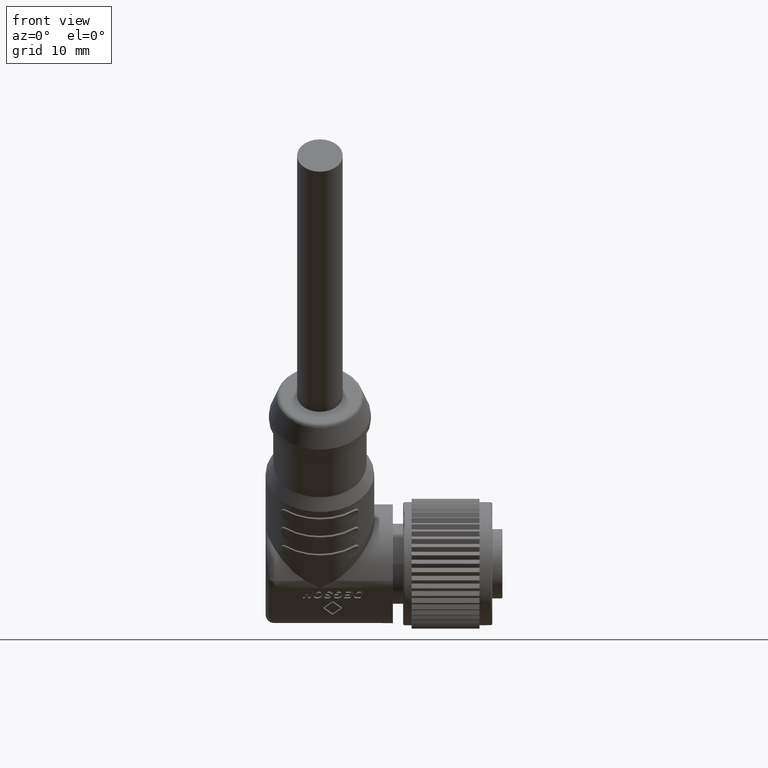
[diagram: clean part render]
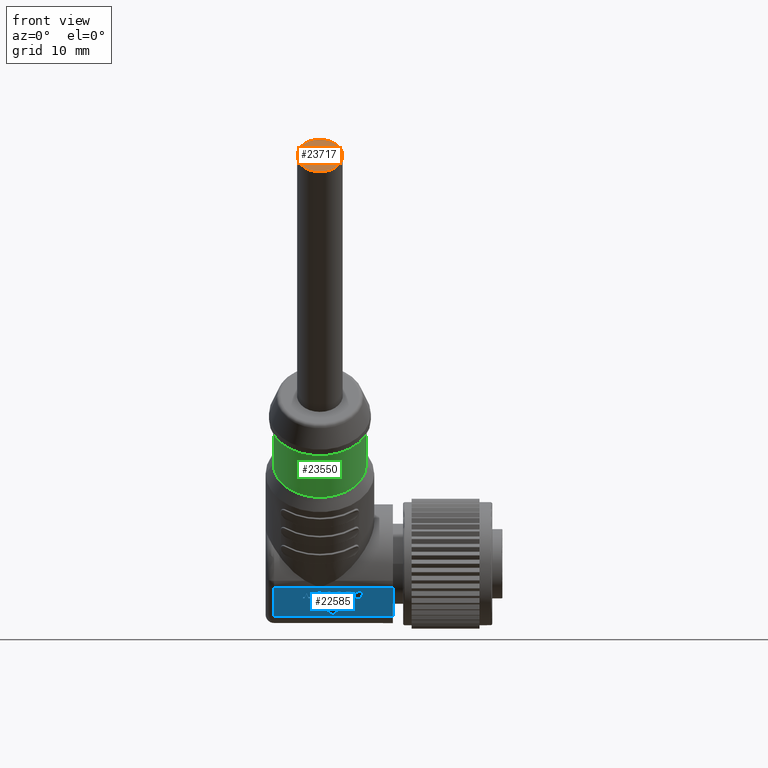
[diagram: same view with three faces highlighted in distinct colors, each labeled with its STEP entity id]
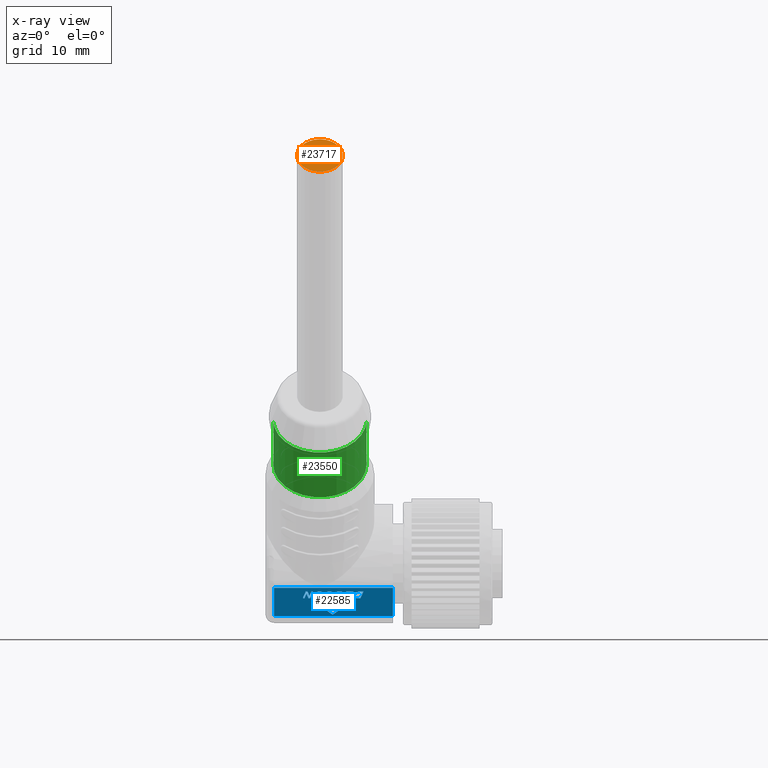
[diagram: x-ray of the same camera — body ghosted, the three highlighted faces saturated]
A machine part, front view with three faces highlighted in distinct colors.
The next image is the same camera in x-ray (body ghosted, the three faces saturated) — at least one of them is partly hidden behind the body in this view.
Their STEP definitions:

[orange] entity #23717 — the highlighted planar face has unit normal (0, -0.7071, 0.7071).
#4231=CARTESIAN_POINT('',(-2.15E1,-4.808326112069E1,4.808326112069E1));
#4232=DIRECTION('',(0.E0,7.071067811865E-1,-7.071067811865E-1));
#4233=DIRECTION('',(0.E0,7.071067811865E-1,7.071067811865E-1));
#4234=AXIS2_PLACEMENT_3D('',#4231,#4232,#4233);
#4236=CARTESIAN_POINT('',(-2.15E1,-4.808326112069E1,4.808326112069E1));
#4237=DIRECTION('',(0.E0,7.071067811865E-1,-7.071067811865E-1));
#4238=DIRECTION('',(0.E0,-7.071067811865E-1,-7.071067811865E-1));
#4239=AXIS2_PLACEMENT_3D('',#4236,#4237,#4238);
#16681=CARTESIAN_POINT('',(-2.15E1,-4.999244942989E1,4.617407281149E1));
#16682=VERTEX_POINT('',#16681);
#16683=CARTESIAN_POINT('',(-2.15E1,-4.617407281149E1,4.999244942989E1));
#16684=VERTEX_POINT('',#16683);
#23708=CARTESIAN_POINT('',(-2.15E1,-4.808326112069E1,4.808326112069E1));
#23709=DIRECTION('',(0.E0,-7.071067811865E-1,7.071067811865E-1));
#23710=DIRECTION('',(0.E0,-7.071067811865E-1,-7.071067811865E-1));
#23711=AXIS2_PLACEMENT_3D('',#23708,#23709,#23710);
#23712=PLANE('',#23711);
#23713=ORIENTED_EDGE('',*,*,#23688,.T.);
#23714=ORIENTED_EDGE('',*,*,#23702,.T.);
#23715=EDGE_LOOP('',(#23713,#23714));
#23716=FACE_OUTER_BOUND('',#23715,.F.);
#23717=ADVANCED_FACE('',(#23716),#23712,.T.);
#4235=CIRCLE('',#4234,2.7E0);
#4240=CIRCLE('',#4239,2.7E0);
#23688=EDGE_CURVE('',#16684,#16682,#4235,.T.);
#23702=EDGE_CURVE('',#16682,#16684,#4240,.T.);

[blue] entity #22585 — the highlighted planar face has unit normal (0, 0.7071, 0.7071).
#2581=DIRECTION('',(0.E0,-7.071067811865E-1,7.071067811865E-1));
#2582=VECTOR('',#2581,4.749736834811E0);
#2583=CARTESIAN_POINT('',(-1.29E1,-2.846197837221E0,-6.204768961967E0));
#2584=LINE('',#2583,#2582);
#2624=DIRECTION('',(1.E0,-6.858006226398E-14,1.523860402942E-13));
#2625=VECTOR('',#2624,1.4E1);
#2626=CARTESIAN_POINT('',(-2.69E1,-2.846197837220E0,-6.204768961969E0));
#2627=LINE('',#2626,#2625);
#2628=DIRECTION('',(-9.589569212890E-1,2.005014003819E-1,-2.005014003860E-1));
#2629=VECTOR('',#2628,8.337171661389E-2);
#2630=CARTESIAN_POINT('',(-1.697111680089E1,-5.743500787149E0,
-3.307466012039E0));
#2631=LINE('',#2630,#2629);
#2632=DIRECTION('',(-9.167350819874E-1,2.824860965194E-1,-2.824860965194E-1));
#2633=VECTOR('',#2632,7.712436778952E-2);
#2634=CARTESIAN_POINT('',(-1.705106668558E1,-5.726784641216E0,
-3.324182157972E0));
#2635=LINE('',#2634,#2633);
#2636=DIRECTION('',(-8.501110711346E-1,3.723648524863E-1,-3.723648524863E-1));
#2637=VECTOR('',#2636,7.222347728062E-2);
#2638=CARTESIAN_POINT('',(-1.712176929920E1,-5.704998079612E0,
-3.345968719576E0));
#2639=LINE('',#2638,#2637);
#2640=DIRECTION('',(-7.641037668405E-1,4.561498840842E-1,-4.561498840842E-1));
#2641=VECTOR('',#2640,9.274033066230E-2);
#2642=CARTESIAN_POINT('',(-1.718316727684E1,-5.678104595149E0,
-3.372862204039E0));
#2643=LINE('',#2642,#2641);
#2644=DIRECTION('',(-6.658651903709E-1,5.275526268783E-1,-5.275526268783E-1));
#2645=VECTOR('',#2644,9.691168567068E-2);
#2646=CARTESIAN_POINT('',(-1.725403051283E1,-5.635801104067E0,
-3.415165695121E0));
#2647=LINE('',#2646,#2645);
#2648=DIRECTION('',(-5.657860489336E-1,5.830463732981E-1,-5.830463732981E-1));
#2649=VECTOR('',#2648,1.029516864962E-1);
#2650=CARTESIAN_POINT('',(-1.731856063086E1,-5.584675089716E0,
-3.466291709472E0));
#2651=LINE('',#2650,#2649);
#2652=DIRECTION('',(-4.490173477938E-1,6.318162000852E-1,-6.318162000852E-1));
#2653=VECTOR('',#2652,1.068050281392E-1);
#2654=CARTESIAN_POINT('',(-1.737680925880E1,-5.524649482280E0,
-3.526317316908E0));
#2655=LINE('',#2654,#2653);
#2656=DIRECTION('',(-3.105482281115E-1,6.721457423866E-1,-6.721457423866E-1));
#2657=VECTOR('',#2656,1.097989738197E-1);
#2658=CARTESIAN_POINT('',(-1.742476656926E1,-5.457168335251E0,
-3.593798463937E0));
#2659=LINE('',#2658,#2657);
#2660=DIRECTION('',(-1.749119282759E-1,6.962060820443E-1,-6.962060820414E-1));
#2661=VECTOR('',#2660,1.150177531560E-1);
#2662=CARTESIAN_POINT('',(-1.745886444603E1,-5.383367422480E0,
-3.667599376708E0));
#2663=LINE('',#2662,#2661);
#2664=DIRECTION('',(4.854652976881E-1,6.181923020957E-1,-6.181923020956E-1));
#2665=VECTOR('',#2664,3.839193963315E-2);
#2666=CARTESIAN_POINT('',(-1.744323242806E1,-5.110696698384E0,
-3.940270100803E0));
#2667=LINE('',#2666,#2665);
#2668=DIRECTION('',(5.841296201784E-1,5.739305649728E-1,-5.739305649817E-1));
#2669=VECTOR('',#2668,3.711216252298E-2);
#2670=CARTESIAN_POINT('',(-1.742459447365E1,-5.086963096840E0,
-3.964003702347E0));
#2671=LINE('',#2670,#2669);
#2672=DIRECTION('',(6.796554336423E-1,5.186851123326E-1,-5.186851123418E-1));
#2673=VECTOR('',#2672,3.652133389159E-2);
#2674=CARTESIAN_POINT('',(-1.740291616026E1,-5.065663292436E0,
-3.985303506752E0));
#2675=LINE('',#2674,#2673);
#2676=DIRECTION('',(7.635072734126E-1,4.566490137108E-1,-4.566490137108E-1));
#2677=VECTOR('',#2676,3.596653945354E-2);
#2678=CARTESIAN_POINT('',(-1.737809423723E1,-5.046720220264E0,
-4.004246578924E0));
#2679=LINE('',#2678,#2677);
#2680=DIRECTION('',(8.395443456395E-1,3.841648680657E-1,-3.841648680564E-1));
#2681=VECTOR('',#2680,3.578389437834E-2);
#2682=CARTESIAN_POINT('',(-1.735063352276E1,-5.030296135496E0,
-4.020670663692E0));
#2683=LINE('',#2682,#2681);
#2684=DIRECTION('',(3.053292478509E-1,-6.733402001985E-1,6.733402001985E-1));
#2685=VECTOR('',#2684,1.146066894796E0);
#2686=CARTESIAN_POINT('',(-1.671930076578E1,-4.983303521007E0,
-4.067663278181E0));
#2687=LINE('',#2686,#2685);
#2688=DIRECTION('',(-2.959506692595E-1,6.754306779270E-1,-6.754306779233E-1));
#2689=VECTOR('',#2688,9.011327212061E-2);
#2690=CARTESIAN_POINT('',(-1.900719718832E1,-5.380625341697E0,
-3.670341457491E0));
#2691=LINE('',#2690,#2689);
#2692=DIRECTION('',(-4.199847567222E-1,6.417214364976E-1,-6.417214364976E-1));
#2693=VECTOR('',#2692,8.949296636919E-2);
#2694=CARTESIAN_POINT('',(-1.903386627152E1,-5.319760073218E0,
-3.731206725969E0));
#2695=LINE('',#2694,#2693);
#2696=DIRECTION('',(-5.432872833760E-1,5.936492768114E-1,-5.936492768152E-1));
#2697=VECTOR('',#2696,8.587559786444E-2);
#2698=CARTESIAN_POINT('',(-1.907145195323E1,-5.262330518283E0,
-3.788636280904E0));
#2699=LINE('',#2698,#2697);
#2700=DIRECTION('',(-6.782801024827E-1,5.195844986987E-1,-5.195844986987E-1));
#2701=VECTOR('',#2700,7.936471492785E-2);
#2702=CARTESIAN_POINT('',(-1.911810707350E1,-5.211350531715E0,
-3.839616267473E0));
#2703=LINE('',#2702,#2701);
#2704=DIRECTION('',(-8.071395952096E-1,4.174480050549E-1,-4.174480050505E-1));
#2705=VECTOR('',#2704,7.565637970430E-2);
#2706=CARTESIAN_POINT('',(-1.917193858047E1,-5.170113856095E0,
-3.880852943093E0));
#2707=LINE('',#2706,#2705);
#2708=DIRECTION('',(-9.035956576299E-1,3.029149117429E-1,-3.029149117429E-1));
#2709=VECTOR('',#2708,7.314162116125E-2);
#2710=CARTESIAN_POINT('',(-1.923300384016E1,-5.138531251318E0,
-3.912435547870E0));
#2711=LINE('',#2710,#2709);
#2712=DIRECTION('',(-9.644580050860E-1,1.868431915052E-1,-1.868431915099E-1));
#2713=VECTOR('',#2712,7.114308709828E-2);
#2714=CARTESIAN_POINT('',(-1.929909429144E1,-5.116375563599E0,
-3.934591235588E0));
#2715=LINE('',#2714,#2713);
#2716=DIRECTION('',(-8.482278649228E-1,-3.745060007319E-1,3.745060007319E-1));
#2717=VECTOR('',#2716,4.911928610916E-2);
#2718=CARTESIAN_POINT('',(-1.954659646321E1,-5.113317089096E0,
-3.937649710092E0));
#2719=LINE('',#2718,#2717);
#2720=DIRECTION('',(-6.732943388432E-1,-5.228167620121E-1,5.228167620122E-1));
#2721=VECTOR('',#2720,4.913529063102E-2);
#2722=CARTESIAN_POINT('',(-1.958826081039E1,-5.131712556495E0,
-3.919254242693E0));
#2723=LINE('',#2722,#2721);
#2724=DIRECTION('',(-4.658320432636E-1,-6.256998111990E-1,6.256998111990E-1));
#2725=VECTOR('',#2724,5.247237491098E-2);
#2726=CARTESIAN_POINT('',(-1.962134332341E1,-5.157401310043E0,
-3.893565489145E0));
#2727=LINE('',#2726,#2725);
#2728=DIRECTION('',(-9.937048610143E-1,7.921694640858E-2,-7.921694640858E-2));
#2729=VECTOR('',#2728,2.131167221955E-1);
#2730=CARTESIAN_POINT('',(-1.966170548096E1,-5.230167858218E0,
-3.820798940970E0));
#2731=LINE('',#2730,#2729);
#2732=DIRECTION('',(2.082028552861E-1,6.916110073788E-1,-6.916110073757E-1));
#2733=VECTOR('',#2732,1.054711763987E-1);
#2734=CARTESIAN_POINT('',(-1.987348060377E1,-5.213285402257E0,
-3.837681396931E0));
#2735=LINE('',#2734,#2733);
#2736=DIRECTION('',(4.331704089024E-1,6.373238567855E-1,-6.373238567820E-1));
#2737=VECTOR('',#2736,9.464845772452E-2);
#2738=CARTESIAN_POINT('',(-1.985152120369E1,-5.140340375698E0,
-3.910626423489E0));
#2739=LINE('',#2738,#2737);
#2740=DIRECTION('',(6.647819617437E-1,5.282352427358E-1,-5.282352427395E-1));
#2741=VECTOR('',#2740,9.024391976254E-2);
#2742=CARTESIAN_POINT('',(-1.981052229256E1,-5.080018655583E0,
-3.970948143605E0));
#2743=LINE('',#2742,#2741);
#2744=DIRECTION('',(8.506462437016E-1,3.717532569283E-1,-3.717532569319E-1));
#2745=VECTOR('',#2744,9.297567242305E-2);
#2746=CARTESIAN_POINT('',(-1.975052976254E1,-5.032348636721E0,
-4.018618162466E0));
#2747=LINE('',#2746,#2745);
#2748=DIRECTION('',(9.580207853996E-1,2.027266321226E-1,-2.027266321194E-1));
#2749=VECTOR('',#2748,1.021653313082E-1);
#2750=CARTESIAN_POINT('',(-1.967144035604E1,-4.997784627683E0,
-4.053182171505E0));
#2751=LINE('',#2750,#2749);
#2752=DIRECTION('',(9.617368273005E-1,-1.937295473255E-1,1.937295473255E-1));
#2753=VECTOR('',#2752,1.177978606139E-1);
#2754=CARTESIAN_POINT('',(-1.933511963910E1,-4.977782852568E0,
-4.073183946620E0));
#2755=LINE('',#2754,#2753);
#2756=DIRECTION('',(8.895316989456E-1,-3.230583202528E-1,3.230583202556E-1));
#2757=VECTOR('',#2756,1.177379653588E-1);
#2758=CARTESIAN_POINT('',(-1.922182909837E1,-5.000603778780E0,
-4.050363020408E0));
#2759=LINE('',#2758,#2757);
#2760=DIRECTION('',(7.896288850308E-1,-4.338699251648E-1,4.338699251648E-1));
#2761=VECTOR('',#2760,1.194265567367E-1);
#2762=CARTESIAN_POINT('',(-1.911709744602E1,-5.038640008099E0,
-4.012326791088E0));
#2763=LINE('',#2762,#2761);
#2764=DIRECTION('',(6.707341178584E-1,-5.244595995611E-1,5.244595995584E-1));
#2765=VECTOR('',#2764,1.223877008714E-1);
#2766=CARTESIAN_POINT('',(-1.902279478718E1,-5.090455599333E0,
-3.960511199854E0));
#2767=LINE('',#2766,#2765);
#2768=DIRECTION('',(5.423619236683E-1,-5.940721941628E-1,5.940721941628E-1));
#2769=VECTOR('',#2768,1.289538469846E-1);
#2770=CARTESIAN_POINT('',(-1.894070518060E1,-5.154643003923E0,
-3.896323795265E0));
#2771=LINE('',#2770,#2769);
#2772=DIRECTION('',(4.231620148188E-1,-6.406769502700E-1,6.406769502700E-1));
#2773=VECTOR('',#2772,1.090063816127E-1);
#2774=CARTESIAN_POINT('',(-1.887076552408E1,-5.231250898747E0,
-3.819715900441E0));
#2775=LINE('',#2774,#2773);
#2776=DIRECTION('',(3.035918302183E-1,-6.737328849866E-1,6.737328849866E-1));
#2777=VECTOR('',#2776,1.067406976487E-1);
#2778=CARTESIAN_POINT('',(-1.882463816401E1,-5.301088774879E0,
-3.749878024309E0));
#2779=LINE('',#2778,#2777);
#2780=DIRECTION('',(1.757850366569E-1,-6.960961215549E-1,6.960961215549E-1));
#2781=VECTOR('',#2780,1.061792595518E-1);
#2782=CARTESIAN_POINT('',(-1.879223256025E1,-5.373003493051E0,
-3.677963306137E0));
#2783=LINE('',#2782,#2781);
#2784=DIRECTION('',(-2.832871635885E-1,-6.781402446935E-1,6.781402446935E-1));
#2785=VECTOR('',#2784,1.261632668075E-1);
#2786=CARTESIAN_POINT('',(-1.877369021416E1,-5.550086518496E0,
-3.500880280692E0));
#2787=LINE('',#2786,#2785);
#2788=DIRECTION('',(-5.957779303292E-1,-5.679122545471E-1,5.679122545499E-1));
#2789=VECTOR('',#2788,1.193660248452E-1);
#2790=CARTESIAN_POINT('',(-1.880943064817E1,-5.635642907120E0,
-3.415323892068E0));
#2791=LINE('',#2790,#2789);
#2792=DIRECTION('',(-8.344921367731E-1,-3.896298715857E-1,3.896298715857E-1));
#2793=VECTOR('',#2792,9.221826974140E-2);
#2794=CARTESIAN_POINT('',(-1.888054629140E1,-5.703432335407E0,
-3.347534463781E0));
#2795=LINE('',#2794,#2793);
#2796=DIRECTION('',(-9.566061312037E-1,-2.060396924683E-1,2.060396924651E-1));
#2797=VECTOR('',#2796,1.046371550969E-1);
#2798=CARTESIAN_POINT('',(-1.895750171237E1,-5.739363328004E0,
-3.311603471184E0));
#2799=LINE('',#2798,#2797);
#2800=DIRECTION('',(-9.706628310963E-1,1.700200992943E-1,-1.700200992943E-1));
#2801=VECTOR('',#2800,8.910947419327E-2);
#2802=CARTESIAN_POINT('',(-1.935430829973E1,-5.755949671455E0,
-3.295017127733E0));
#2803=LINE('',#2802,#2801);
#2804=DIRECTION('',(-9.475889482615E-1,2.259150118216E-1,-2.259150118216E-1));
#2805=VECTOR('',#2804,8.693871889234E-2);
#2806=CARTESIAN_POINT('',(-1.944080355423E1,-5.740799269804E0,
-3.310167529384E0));
#2807=LINE('',#2806,#2805);
#2808=DIRECTION('',(-9.203341213314E-1,2.765728702490E-1,-2.765728702448E-1));
#2809=VECTOR('',#2808,8.056261779992E-2);
#2810=CARTESIAN_POINT('',(-1.952318572343E1,-5.721158508098E0,
-3.329808291090E0));
#2811=LINE('',#2810,#2809);
#2812=DIRECTION('',(-8.819382726775E-1,3.333053278802E-1,-3.333053278802E-1));
#2813=VECTOR('',#2812,7.473609094884E-2);
#2814=CARTESIAN_POINT('',(-1.959733024949E1,-5.698877073658E0,
-3.352089725529E0));
#2815=LINE('',#2814,#2813);
#2816=DIRECTION('',(-3.059299016409E-1,6.732038678146E-1,-6.732038678153E-1));
#2817=VECTOR('',#2816,4.918787011333E-1);
#2818=CARTESIAN_POINT('',(-1.966324286845E1,-5.673967136360E0,
-3.376999662827E0));
#2819=LINE('',#2818,#2817);
#2820=DIRECTION('',(3.048854713381E-1,-6.734407358352E-1,6.734407358370E-1));
#2821=VECTOR('',#2820,1.915588624238E-1);
#2822=CARTESIAN_POINT('',(-1.932532739913E1,-5.342832492262E0,
-3.708134306926E0));
#2823=LINE('',#2822,#2821);
#2824=DIRECTION('',(3.032092242732E-1,-6.738190284929E-1,6.738190284910E-1));
#2825=VECTOR('',#2824,1.701227634281E-1);
#2826=CARTESIAN_POINT('',(-1.954541473976E1,-5.471836033528E0,
-3.579130765659E0));
#2827=LINE('',#2826,#2825);
#2828=DIRECTION('',(9.145071008698E-1,-2.860740834670E-1,2.860740834596E-1));
#2829=VECTOR('',#2828,4.480661223301E-2);
#2830=CARTESIAN_POINT('',(-1.949383194863E1,-5.586467988706E0,
-3.464498810482E0));
#2831=LINE('',#2830,#2829);
#2832=DIRECTION('',(9.366527529545E-1,2.476707697557E-1,-2.476707697557E-1));
#2833=VECTOR('',#2832,6.258003857270E-2);
#2834=CARTESIAN_POINT('',(-1.913387103141E1,-5.630357505952E0,
-3.420609293236E0));
#2835=LINE('',#2834,#2833);
#2836=DIRECTION('',(7.690744699123E-1,4.519537917360E-1,-4.519537917360E-1));
#2837=VECTOR('',#2836,5.727014080318E-2);
#2838=CARTESIAN_POINT('',(-1.907525526600E1,-5.614858259627E0,
-3.436108539561E0));
#2839=LINE('',#2838,#2837);
#2840=DIRECTION('',(4.868715340836E-1,6.176390974101E-1,-6.176390974101E-1));
#2841=VECTOR('',#2840,5.944226214552E-2);
#2842=CARTESIAN_POINT('',(-1.903121026282E1,-5.588974802338E0,
-3.461991996850E0));
#2843=LINE('',#2842,#2841);
#2844=DIRECTION('',(-3.060848186795E-1,6.731686578317E-1,-6.731686578317E-1));
#2845=VECTOR('',#2844,2.602271679173E-1);
#2846=CARTESIAN_POINT('',(-1.798750200839E1,-5.287483835632E0,
-3.763482963556E0));
#2847=LINE('',#2846,#2845);
#2848=DIRECTION('',(-3.038255550201E-1,6.736802031071E-1,-6.736802031071E-1));
#2849=VECTOR('',#2848,1.914907706543E-1);
#2850=CARTESIAN_POINT('',(-1.865155587093E1,-5.112307062274E0,
-3.938659736914E0));
#2851=LINE('',#2850,#2849);
#2852=DIRECTION('',(3.049206747091E-1,-6.734327665532E-1,6.734327665532E-1));
#2853=VECTOR('',#2852,1.145909362759E0);
#2854=CARTESIAN_POINT('',(-1.790070845521E1,-4.983303521007E0,
-4.067663278181E0));
#2855=LINE('',#2854,#2853);
#2856=DIRECTION('',(-3.073271087754E-1,6.728855951095E-1,-6.728855951095E-1));
#2857=VECTOR('',#2856,1.917169013643E-1);
#2858=CARTESIAN_POINT('',(-1.840378408280E1,-5.754996433389E0,
-3.295970365799E0));
#2859=LINE('',#2858,#2857);
#2860=DIRECTION('',(-3.235663988216E-1,6.690683020266E-1,-6.690683020266E-1));
#2861=VECTOR('',#2860,3.131302358643E-1);
#2862=CARTESIAN_POINT('',(-1.782773417945E1,-5.625992892122E0,
-3.424973907066E0));
#2863=LINE('',#2862,#2861);
#2864=DIRECTION('',(-3.038255550043E-1,6.736802031106E-1,-6.736802031106E-1));
#2865=VECTOR('',#2864,1.914907706523E-1);
#2866=CARTESIAN_POINT('',(-1.849416296140E1,-5.416487376899E0,
-3.634479422289E0));
#2867=LINE('',#2866,#2865);
#2868=DIRECTION('',(-4.893705267178E-1,-6.166508280948E-1,6.166508280948E-1));
#2869=VECTOR('',#2868,5.964273531528E-2);
#2870=CARTESIAN_POINT('',(-2.001500056140E1,-5.641804476639E0,
-3.409162322549E0));
#2871=LINE('',#2870,#2869);
#2872=DIRECTION('',(-7.062248425918E-1,-5.006228479109E-1,5.006228479163E-1));
#2873=VECTOR('',#2872,6.183080478482E-2);
#2874=CARTESIAN_POINT('',(-2.004418795819E1,-5.678583218761E0,
-3.372383580427E0));
#2875=LINE('',#2874,#2873);
#2876=DIRECTION('',(-8.528153423256E-1,-3.692600654648E-1,3.692600654648E-1));
#2877=VECTOR('',#2876,6.814008737364E-2);
#2878=CARTESIAN_POINT('',(-2.008785440857E1,-5.709537132341E0,
-3.341429666847E0));
#2879=LINE('',#2878,#2877);
#2880=DIRECTION('',(-9.361649327274E-1,-2.485912495782E-1,2.485912495737E-1));
#2881=VECTOR('',#2880,7.468418131595E-2);
#2882=CARTESIAN_POINT('',(-2.014596532051E1,-5.734698545465E0,
-3.316268253723E0));
#2883=LINE('',#2882,#2881);
#2884=DIRECTION('',(-9.550539159015E-1,2.096091812411E-1,-2.096091812411E-1));
#2885=VECTOR('',#2884,1.150663014087E-1);
#2886=CARTESIAN_POINT('',(-2.051178896250E1,-5.760079018121E0,
-3.290887781067E0));
#2887=LINE('',#2886,#2885);
#2888=DIRECTION('',(-8.515984696463E-1,3.706616020670E-1,-3.706616020701E-1));
#2889=VECTOR('',#2888,1.086141612852E-1);
#2890=CARTESIAN_POINT('',(-2.062168348425E1,-5.735960064894E0,
-3.315006734293E0));
#2891=LINE('',#2890,#2889);
#2892=DIRECTION('',(-7.012137054153E-1,5.041325913576E-1,-5.041325913576E-1));
#2893=VECTOR('',#2892,1.021460264455E-1);
#2894=CARTESIAN_POINT('',(-2.071417913778E1,-5.695700965865E0,
-3.355265833323E0));
#2895=LINE('',#2894,#2893);
#2896=DIRECTION('',(-4.982927592091E-1,6.130678290857E-1,-6.130678290857E-1));
#2897=VECTOR('',#2896,9.487327240356E-2);
#2898=CARTESIAN_POINT('',(-2.078580533148E1,-5.644205824856E0,
-3.406760974332E0));
#2899=LINE('',#2898,#2897);
#2900=DIRECTION('',(-2.425070428846E-1,6.859993929138E-1,-6.859993929103E-1));
#2901=VECTOR('',#2900,9.417476393462E-2);
#2902=CARTESIAN_POINT('',(-2.083307999616E1,-5.586042073706E0,
-3.464924725482E0));
#2903=LINE('',#2902,#2901);
#2904=DIRECTION('',(2.785069255915E-1,6.791295503771E-1,-6.791295503821E-1));
#2905=VECTOR('',#2904,6.664977616509E-2);
#2906=CARTESIAN_POINT('',(-2.085564651130E1,-5.469725958972E0,
-3.581240840216E0));
#2907=LINE('',#2906,#2905);
#2908=DIRECTION('',(5.571602772247E-1,5.871849902215E-1,-5.871849902215E-1));
#2909=VECTOR('',#2908,6.558549809147E-2);
#2910=CARTESIAN_POINT('',(-2.083708408705E1,-5.424462126452E0,
-3.626504672736E0));
#2911=LINE('',#2910,#2909);
#2912=DIRECTION('',(7.737522923899E-1,4.479438525203E-1,-4.479438525203E-1));
#2913=VECTOR('',#2912,5.860686184394E-2);
#2914=CARTESIAN_POINT('',(-2.080054245275E1,-5.385951306396E0,
-3.665015492792E0));
#2915=LINE('',#2914,#2913);
#2916=DIRECTION('',(8.634626829853E-1,3.566736569274E-1,-3.566736569274E-1));
#2917=VECTOR('',#2916,8.689858586269E-2);
#2918=CARTESIAN_POINT('',(-2.075519525905E1,-5.359698722918E0,
-3.691268076270E0));
#2919=LINE('',#2918,#2917);
#2920=DIRECTION('',(9.003584334574E-1,3.076968404957E-1,-3.076968404957E-1));
#2921=VECTOR('',#2920,1.939141417864E-1);
#2922=CARTESIAN_POINT('',(-2.068016157295E1,-5.328704286516E0,
-3.722262512672E0));
#2923=LINE('',#2922,#2921);
#2924=DIRECTION('',(8.711735602223E-1,3.471718795998E-1,-3.471718795998E-1));
#2925=VECTOR('',#2924,5.810961152928E-2);
#2926=CARTESIAN_POINT('',(-2.050556934003E1,-5.269037517761E0,
-3.781929281427E0));
#2927=LINE('',#2926,#2925);
#2928=DIRECTION('',(8.022430047911E-1,4.221410672179E-1,-4.221410672179E-1));
#2929=VECTOR('',#2928,3.918529852015E-2);
#2930=CARTESIAN_POINT('',(-2.045494578287E1,-5.248863494704E0,
-3.802103304484E0));
#2931=LINE('',#2930,#2929);
#2932=DIRECTION('',(6.271734058765E-1,5.507510866813E-1,-5.507510866813E-1));
#2933=VECTOR('',#2932,2.847344668097E-2);
#2934=CARTESIAN_POINT('',(-2.042350965124E1,-5.232321770967E0,
-3.818645028221E0));
#2935=LINE('',#2934,#2933);
#2936=DIRECTION('',(-7.230370323745E-1,4.884759204943E-1,-4.884759205040E-1));
#2937=VECTOR('',#2936,3.435388772766E-2);
#2938=CARTESIAN_POINT('',(-2.041978664891E1,-5.135910860662E0,
-3.915055938526E0));
#2939=LINE('',#2938,#2937);
#2940=DIRECTION('',(-8.841279605056E-1,3.303920016117E-1,-3.303920016031E-1));
#2941=VECTOR('',#2940,3.895597766646E-2);
#2942=CARTESIAN_POINT('',(-2.044462578194E1,-5.119129813731E0,
-3.931836985457E0));
#2943=LINE('',#2942,#2941);
#2944=DIRECTION('',(-8.328735945657E-1,-3.913576212847E-1,3.913576212847E-1));
#2945=VECTOR('',#2944,4.175966706077E-2);
#2946=CARTESIAN_POINT('',(-2.068454427338E1,-5.109078221360E0,
-3.941888577828E0));
#2947=LINE('',#2946,#2945);
#2948=DIRECTION('',(-6.061080111526E-1,-5.624202515987E-1,5.624202515987E-1));
#2949=VECTOR('',#2948,4.000651796700E-2);
#2950=CARTESIAN_POINT('',(-2.071932479739E1,-5.125421185326E0,
-3.925545613862E0));
#2951=LINE('',#2950,#2949);
#2952=DIRECTION('',(3.485192984986E-1,6.627723208516E-1,-6.627723208516E-1));
#2953=VECTOR('',#2952,8.526120613880E-2);
#2954=CARTESIAN_POINT('',(-2.097170301115E1,-5.137504999288E0,
-3.913461799900E0));
#2955=LINE('',#2954,#2953);
#2956=DIRECTION('',(6.158555096554E-1,5.571005255908E-1,-5.571005255908E-1));
#2957=VECTOR('',#2956,8.474530314129E-2);
#2958=CARTESIAN_POINT('',(-2.094198783540E1,-5.080996231817E0,
-3.969970567371E0));
#2959=LINE('',#2958,#2957);
#2960=DIRECTION('',(8.296065898978E-1,3.948119210467E-1,-3.948119210430E-1));
#2961=VECTOR('',#2960,8.949758289938E-2);
#2962=CARTESIAN_POINT('',(-2.088979697354E1,-5.033784578896E0,
-4.017182220292E0));
#2963=LINE('',#2962,#2961);
#2964=DIRECTION('',(9.543150502558E-1,2.112850975049E-1,-2.112850975049E-1));
#2965=VECTOR('',#2964,1.003499530018E-1);
#2966=CARTESIAN_POINT('',(-2.081554918899E1,-4.998449866262E0,
-4.052516932926E0));
#2967=LINE('',#2966,#2965);
#2968=DIRECTION('',(9.569150153135E-1,-2.053212768658E-1,2.053212768659E-1));
#2969=VECTOR('',#2968,1.041537677280E-1);
#2970=CARTESIAN_POINT('',(-2.048525755610E1,-4.977304205070E0,
-4.073662594118E0));
#2971=LINE('',#2970,#2969);
#2972=DIRECTION('',(8.522098890809E-1,-3.699583118087E-1,3.699583118087E-1));
#2973=VECTOR('',#2972,9.633230704145E-2);
#2974=CARTESIAN_POINT('',(-2.038559125186E1,-4.998689189650E0,
-4.052277609538E0));
#2975=LINE('',#2974,#2973);
#2976=DIRECTION('',(6.902672976347E-1,-5.116302658249E-1,5.116302658249E-1));
#2977=VECTOR('',#2976,9.099252016906E-2);
#2978=CARTESIAN_POINT('',(-2.030349590716E1,-5.034328127336E0,
-4.016638671852E0));
#2979=LINE('',#2978,#2977);
#2980=DIRECTION('',(4.808309759188E-1,-6.200006341114E-1,6.200006341114E-1));
#2981=VECTOR('',#2980,8.687739268232E-2);
#2982=CARTESIAN_POINT('',(-2.024068674616E1,-5.080882654618E0,
-3.970084144570E0));
#2983=LINE('',#2982,#2981);
#2984=DIRECTION('',(2.326790933459E-1,-6.876992218676E-1,6.876992218713E-1));
#2985=VECTOR('',#2984,9.046864081401E-2);
#2986=CARTESIAN_POINT('',(-2.019891340465E1,-5.134746693171E0,
-3.916220106017E0));
#2987=LINE('',#2986,#2985);
#2988=DIRECTION('',(-4.980073003656E-1,-6.131837933169E-1,6.131837933247E-1));
#2989=VECTOR('',#2988,4.229758160032E-2);
#2990=CARTESIAN_POINT('',(-2.019637786213E1,-5.293422305603E0,
-3.757544493585E0));
#2991=LINE('',#2990,#2989);
#2992=DIRECTION('',(-6.489372717873E-1,-5.379964764221E-1,5.379964764221E-1));
#2993=VECTOR('',#2992,4.183025880156E-2);
#2994=CARTESIAN_POINT('',(-2.021744236655E1,-5.319358497137E0,
-3.731608302051E0));
#2995=LINE('',#2994,#2993);
#2996=DIRECTION('',(-7.749186183236E-1,-4.469346344727E-1,4.469346344649E-1));
#2997=VECTOR('',#2996,4.276562404495E-2);
#2998=CARTESIAN_POINT('',(-2.024458758058E1,-5.341863028980E0,
-3.709103770208E0));
#2999=LINE('',#2998,#2997);
#3000=DIRECTION('',(-8.533290684001E-1,-3.686661776075E-1,3.686661776075E-1));
#3001=VECTOR('',#3000,5.103063700675E-2);
#3002=CARTESIAN_POINT('',(-2.027772745887E1,-5.360976467530E0,
-3.689990331658E0));
#3003=LINE('',#3002,#3001);
#3004=DIRECTION('',(-8.853692303264E-1,-3.287258173549E-1,3.287258173549E-1));
#3005=VECTOR('',#3004,6.588091946238E-2);
#3006=CARTESIAN_POINT('',(-2.032127338481E1,-5.379789737416E0,
-3.671177061772E0));
#3007=LINE('',#3006,#3005);
#3008=DIRECTION('',(-9.031944197023E-1,-3.035126358313E-1,3.035126358313E-1));
#3009=VECTOR('',#3008,1.584505863792E-1);
#3010=CARTESIAN_POINT('',(-2.037960232377E1,-5.401446496515E0,
-3.649520302673E0));
#3011=LINE('',#3010,#3009);
#3012=DIRECTION('',(-8.784585284491E-1,-3.378687717110E-1,3.378687717110E-1));
#3013=VECTOR('',#3012,5.556248721707E-2);
#3014=CARTESIAN_POINT('',(-2.052271400918E1,-5.449538251636E0,
-3.601428547552E0));
#3015=LINE('',#3014,#3013);
#3016=DIRECTION('',(-8.138248794259E-1,-4.109069636959E-1,4.109069636958E-1));
#3017=VECTOR('',#3016,3.391901224441E-2);
#3018=CARTESIAN_POINT('',(-2.057152334994E1,-5.468311080945E0,
-3.582655718243E0));
#3019=LINE('',#3018,#3017);
#3020=DIRECTION('',(-6.351322731107E-1,-5.461716743173E-1,5.461716743173E-1));
#3021=VECTOR('',#3020,3.113333410203E-2);
#3022=CARTESIAN_POINT('',(-2.059912748599E1,-5.482248639278E0,
-3.568718159910E0));
#3023=LINE('',#3022,#3021);
#3024=DIRECTION('',(5.324157793748E-1,-5.985538563374E-1,5.985538563374E-1));
#3025=VECTOR('',#3024,3.751685173078E-2);
#3026=CARTESIAN_POINT('',(-2.062096068208E1,-5.565261482694E0,
-3.485705316494E0));
#3027=LINE('',#3026,#3025);
#3028=DIRECTION('',(7.338652456612E-1,-4.803341551517E-1,4.803341551517E-1));
#3029=VECTOR('',#3028,4.152315018858E-2);
#3030=CARTESIAN_POINT('',(-2.060098611822E1,-5.587717338975E0,
-3.463249460213E0));
#3031=LINE('',#3030,#3029);
#3032=DIRECTION('',(8.871374197400E-1,-3.263335705203E-1,3.263335705203E-1));
#3033=VECTOR('',#3032,4.733351035284E-2);
#3034=CARTESIAN_POINT('',(-2.057051372141E1,-5.607662326240E0,
-3.443304472948E0));
#3035=LINE('',#3034,#3033);
#3036=DIRECTION('',(9.492130267545E-1,2.224799202620E-1,-2.224799202620E-1));
#3037=VECTOR('',#3036,6.157065745165E-2);
#3038=CARTESIAN_POINT('',(-2.032850713678E1,-5.630953786859E0,
-3.420013012329E0));
#3039=LINE('',#3038,#3037);
#3040=DIRECTION('',(7.653046028104E-1,4.551422112468E-1,-4.551422112468E-1));
#3041=VECTOR('',#3040,5.027389285117E-2);
#3042=CARTESIAN_POINT('',(-2.027006346666E1,-5.617255551898E0,
-3.433711247290E0));
#3043=LINE('',#3042,#3041);
#3044=DIRECTION('',(-4.021013785858E-1,-6.474235404044E-1,6.474235404044E-1));
#3045=VECTOR('',#3044,7.060418370301E-2);
#3046=CARTESIAN_POINT('',(-2.116361256353E1,-5.598316535859E0,
-3.452650263329E0));
#3047=LINE('',#3046,#3045);
#3048=DIRECTION('',(-5.959490568342E-1,-5.678224729871E-1,5.678224729871E-1));
#3049=VECTOR('',#3048,7.127947042881E-2);
#3050=CARTESIAN_POINT('',(-2.119200260313E1,-5.644027346440E0,
-3.406939452748E0));
#3051=LINE('',#3050,#3049);
#3052=DIRECTION('',(-7.502458772379E-1,-4.675099590851E-1,4.675099590851E-1));
#3053=VECTOR('',#3052,7.546786763248E-2);
#3054=CARTESIAN_POINT('',(-2.123448153631E1,-5.684501431612E0,
-3.366465367576E0));
#3055=LINE('',#3054,#3053);
#3056=DIRECTION('',(-8.777695761955E-1,-3.387628751100E-1,3.387628751100E-1));
#3057=VECTOR('',#3056,8.005788342472E-2);
#3058=CARTESIAN_POINT('',(-2.129110099286E1,-5.719783411321E0,
-3.331183387867E0));
#3059=LINE('',#3058,#3057);
#3060=DIRECTION('',(-9.633628649539E-1,-1.896470279577E-1,1.896470279616E-1));
#3061=VECTOR('',#3060,8.596180250085E-2);
#3062=CARTESIAN_POINT('',(-2.136137336727E1,-5.746904050085E0,
-3.304062749103E0));
#3063=LINE('',#3062,#3061);
#3064=DIRECTION('',(-9.658540863261E-1,1.832019158294E-1,-1.832019158294E-1));
#3065=VECTOR('',#3064,1.120572263064E-1);
#3066=CARTESIAN_POINT('',(-2.165370644589E1,-5.761815128330E0,
-3.289151670858E0));
#3067=LINE('',#3066,#3065);
#3068=DIRECTION('',(-9.039099706872E-1,3.024456685855E-1,-3.024456685855E-1));
#3069=VECTOR('',#3068,1.132758968557E-1);
#3070=CARTESIAN_POINT('',(-2.176193737582E1,-5.741286029788E0,
-3.309680769400E0));
#3071=LINE('',#3070,#3069);
#3072=DIRECTION('',(-8.165214178943E-1,4.082234523654E-1,-4.082234523625E-1));
#3073=VECTOR('',#3072,1.147272263411E-1);
#3074=CARTESIAN_POINT('',(-2.186432858842E1,-5.707026225429E0,
-3.343940573759E0));
#3075=LINE('',#3074,#3073);
#3076=DIRECTION('',(-7.063465446842E-1,5.005369910470E-1,-5.005369910470E-1));
#3077=VECTOR('',#3076,1.170213499819E-1);
#3078=CARTESIAN_POINT('',(-2.195800582595E1,-5.660191881011E0,
-3.390774918176E0));
#3079=LINE('',#3078,#3077);
#3080=DIRECTION('',(-5.844662668147E-1,5.737591755051E-1,-5.737591755078E-1));
#3081=VECTOR('',#3080,1.225398905818E-1);
#3082=CARTESIAN_POINT('',(-2.204066345216E1,-5.601618366603E0,
-3.449348432585E0));
#3083=LINE('',#3082,#3081);
#3084=DIRECTION('',(-4.648220248956E-1,6.260752691059E-1,-6.260752691059E-1));
#3085=VECTOR('',#3084,1.230553675367E-1);
#3086=CARTESIAN_POINT('',(-2.211228388455E1,-5.531309980016E0,
-3.519656819172E0));
#3087=LINE('',#3086,#3085);
#3088=DIRECTION('',(-3.333583099800E-1,6.666604222418E-1,-6.666604222418E-1));
#3089=VECTOR('',#3088,1.181864098239E-1);
#3090=CARTESIAN_POINT('',(-2.216948272966E1,-5.454268057671E0,
-3.596698741517E0));
#3091=LINE('',#3090,#3089);
#3092=DIRECTION('',(-1.867918378629E-1,6.946613596954E-1,-6.946613596954E-1));
#3093=VECTOR('',#3092,1.165524745951E-1);
#3094=CARTESIAN_POINT('',(-2.220888115150E1,-5.375477855795E0,
-3.675488943393E0));
#3095=LINE('',#3094,#3093);
#3096=DIRECTION('',(2.538175733429E-1,6.839505243299E-1,-6.839505243299E-1));
#3097=VECTOR('',#3096,1.145604903463E-1);
#3098=CARTESIAN_POINT('',(-2.223102316387E1,-5.203223230889E0,
-3.847743568299E0));
#3099=LINE('',#3098,#3097);
#3100=DIRECTION('',(5.360393674808E-1,5.969345845697E-1,-5.969345845697E-1));
#3101=VECTOR('',#3100,1.101309612083E-1);
#3102=CARTESIAN_POINT('',(-2.220194569821E1,-5.124869523449E0,
-3.926097275739E0));
#3103=LINE('',#3102,#3101);
#3104=DIRECTION('',(7.685999384749E-1,4.523572341504E-1,-4.523572341504E-1));
#3105=VECTOR('',#3104,1.092372099280E-1);
#3106=CARTESIAN_POINT('',(-2.214291116743E1,-5.059128543872E0,
-3.991838255316E0));
#3107=LINE('',#3106,#3105);
#3108=DIRECTION('',(9.278703404325E-1,2.636822247950E-1,-2.636822247950E-1));
#3109=VECTOR('',#3108,1.124527471546E-1);
#3110=CARTESIAN_POINT('',(-2.205895145460E1,-5.009714301723E0,
-4.041252497465E0));
#3111=LINE('',#3110,#3109);
#3112=DIRECTION('',(9.762128037682E-1,-1.533110592212E-1,1.533110592213E-1));
#3113=VECTOR('',#3112,9.434989088496E-2);
#3114=CARTESIAN_POINT('',(-2.173196979348E1,-4.974983983023E0,
-4.075982816165E0));
#3115=LINE('',#3114,#3113);
#3116=DIRECTION('',(9.296551808136E-1,-2.605199078635E-1,2.605199078635E-1));
#3117=VECTOR('',#3116,9.295372901850E-2);
#3118=CARTESIAN_POINT('',(-2.163986422196E1,-4.989448864732E0,
-4.061517934456E0));
#3119=LINE('',#3118,#3117);
#3120=DIRECTION('',(8.663198789212E-1,-3.531924881605E-1,3.531924881605E-1));
#3121=VECTOR('',#3120,9.171735292227E-2);
#3122=CARTESIAN_POINT('',(-2.155344930621E1,-5.013665161651E0,
-4.037301637537E0));
#3123=LINE('',#3122,#3121);
#3124=DIRECTION('',(7.896211992857E-1,-4.338769189751E-1,4.338769189751E-1));
#3125=VECTOR('',#3124,9.069507407815E-2);
#3126=CARTESIAN_POINT('',(-2.147399274013E1,-5.046059041737E0,
-4.004907757451E0));
#3127=LINE('',#3126,#3125);
#3128=DIRECTION('',(6.972102095553E-1,-5.069013334427E-1,5.069013334427E-1));
#3129=VECTOR('',#3128,9.134521884710E-2);
#3130=CARTESIAN_POINT('',(-2.140237798696E1,-5.085409541044E0,
-3.965557258143E0));
#3131=LINE('',#3130,#3129);
#3132=DIRECTION('',(5.975572971067E-1,-5.669767529091E-1,5.669767529055E-1));
#3133=VECTOR('',#3132,9.329231970059E-2);
#3134=CARTESIAN_POINT('',(-2.133869116779E1,-5.131712554282E0,
-3.919254244906E0));
#3135=LINE('',#3134,#3133);
#3136=DIRECTION('',(4.984879781386E-1,-6.129884728326E-1,6.129884728326E-1));
#3137=VECTOR('',#3136,9.591785604032E-2);
#3138=CARTESIAN_POINT('',(-2.128294366139E1,-5.184607130777E0,
-3.866359668411E0));
#3139=LINE('',#3138,#3137);
#3140=DIRECTION('',(3.988920683803E-1,-6.484154215406E-1,6.484154215406E-1));
#3141=VECTOR('',#3140,9.984821421415E-2);
#3142=CARTESIAN_POINT('',(-2.123512976326E1,-5.243403670868E0,
-3.807563128320E0));
#3143=LINE('',#3142,#3141);
#3144=DIRECTION('',(3.229396957568E-1,-6.692196772729E-1,6.692196772774E-1));
#3145=VECTOR('',#3144,7.426894966781E-2);
#3146=CARTESIAN_POINT('',(-2.119530110257E1,-5.308146792778E0,
-3.742820006410E0));
#3147=LINE('',#3146,#3145);
#3148=DIRECTION('',(2.471708572131E-1,-6.851666101557E-1,6.851666101557E-1));
#3149=VECTOR('',#3148,7.013676624056E-2);
#3150=CARTESIAN_POINT('',(-2.117131671056E1,-5.357849035306E0,
-3.693117763882E0));
#3151=LINE('',#3150,#3149);
#3152=DIRECTION('',(-3.049792698599E-1,6.734194996270E-1,-6.734194996270E-1));
#3153=VECTOR('',#3152,7.700062204127E-1);
#3154=CARTESIAN_POINT('',(-2.251092615869E1,-5.754996433389E0,
-3.295970365799E0));
#3155=LINE('',#3154,#3153);
#3156=DIRECTION('',(-2.790935552508E-1,-6.790091263810E-1,6.790091263810E-1));
#3157=VECTOR('',#3156,7.636675024148E-1);
#3158=CARTESIAN_POINT('',(-2.274576209358E1,-5.236459229729E0,
-3.814507569459E0));
#3159=LINE('',#3158,#3157);
#3160=DIRECTION('',(-3.047027004710E-1,6.734820949089E-1,-6.734820949089E-1));
#3161=VECTOR('',#3160,1.145825432058E0);
#3162=CARTESIAN_POINT('',(-2.316827976533E1,-5.754996433389E0,
-3.295970365799E0));
#3163=LINE('',#3162,#3161);
#3164=DIRECTION('',(3.051424075052E-1,-6.733825477178E-1,6.733825477178E-1));
#3165=VECTOR('',#3164,7.668498280853E-1);
#3166=CARTESIAN_POINT('',(-2.330904823897E1,-4.983303521007E0,
-4.067663278181E0));
#3167=LINE('',#3166,#3165);
#3168=DIRECTION('',(2.814790280506E-1,6.785166014062E-1,-6.785166014062E-1));
#3169=VECTOR('',#3168,7.610473935091E-1);
#3170=CARTESIAN_POINT('',(-2.307504983623E1,-5.499686811960E0,
-3.551279987228E0));
#3171=LINE('',#3170,#3169);
#3172=DIRECTION('',(3.046890753947E-1,-6.734851770214E-1,6.734851770214E-1));
#3173=VECTOR('',#3172,1.145820188345E0);
#3174=CARTESIAN_POINT('',(-2.265093167521E1,-4.983303521007E0,
-4.067663278181E0));
#3175=LINE('',#3174,#3173);
#3176=DIRECTION('',(7.073002448749E-1,4.998631630756E-1,-4.998631630756E-1));
#3177=VECTOR('',#3176,1.543808324728E0);
#3178=CARTESIAN_POINT('',(-2.108267716535E1,-3.808314662512E0,
-5.242652136675E0));
#3179=LINE('',#3178,#3177);
#3180=DIRECTION('',(7.069131585727E-1,-5.001368743838E-1,5.001368743838E-1));
#3181=VECTOR('',#3180,1.542963440421E0);
#3182=CARTESIAN_POINT('',(-1.999074115923E1,-3.036621750131E0,
-6.014345049057E0));
#3183=LINE('',#3182,#3181);
#3188=DIRECTION('',(-4.607563960386E-13,7.071067811865E-1,-7.071067811865E-1));
#3189=VECTOR('',#3188,4.749736834815E0);
#3190=CARTESIAN_POINT('',(-2.69E1,-6.204768961969E0,-2.846197837220E0));
#3191=LINE('',#3190,#3189);
#3822=DIRECTION('',(-1.E0,-1.795979385882E-13,2.009245483170E-13));
#3823=VECTOR('',#3822,8.6E0);
#3824=CARTESIAN_POINT('',(-1.29E1,-6.204768961967E0,-2.846197837221E0));
#3825=LINE('',#3824,#3823);
#3935=DIRECTION('',(-1.E0,-7.812680543659E-14,-1.728658368713E-13));
#3936=VECTOR('',#3935,5.4E0);
#3937=CARTESIAN_POINT('',(-2.15E1,-6.204768961969E0,-2.846197837219E0));
#3938=LINE('',#3937,#3936);
#7942=DIRECTION('',(9.999999253272E-1,-2.732631707140E-4,2.732631707186E-4));
#7943=VECTOR('',#7942,3.847082951220E-1);
#7944=CARTESIAN_POINT('',(-1.675408128920E1,-5.754891306781E0,
-3.296075492407E0));
#7945=LINE('',#7944,#7943);
#7954=DIRECTION('',(-9.999999927604E-1,-8.508602992991E-5,8.508602992991E-5));
#7955=VECTOR('',#7954,2.939851985193E-1);
#7956=CARTESIAN_POINT('',(-1.671930076578E1,-4.983303521007E0,
-4.067663278181E0));
#7957=LINE('',#7956,#7955);
#7962=DIRECTION('',(-9.999797577598E-1,-4.499114951523E-3,4.499114951523E-3));
#7963=VECTOR('',#7962,7.212673085417E-2);
#7964=CARTESIAN_POINT('',(-1.701328596217E1,-4.983328535040E0,
-4.067638264148E0));
#7965=LINE('',#7964,#7963);
#7970=DIRECTION('',(-9.997082198116E-1,-1.708032846856E-2,1.708032846854E-2));
#7971=VECTOR('',#7970,5.228642983707E-2);
#7972=CARTESIAN_POINT('',(-1.708541123302E1,-4.983653041494E0,
-4.067313757694E0));
#7973=LINE('',#7972,#7971);
#7978=DIRECTION('',(-9.984109911579E-1,-3.984653519593E-2,3.984653520702E-2));
#7979=VECTOR('',#7978,2.996280040500E-2);
#7980=CARTESIAN_POINT('',(-1.713768240671E1,-4.984546110890E0,
-4.066420688298E0));
#7981=LINE('',#7980,#7979);
#7986=DIRECTION('',(-9.905148717897E-1,-9.716040541800E-2,9.716040542528E-2));
#7987=VECTOR('',#7986,4.577062531511E-2);
#7988=CARTESIAN_POINT('',(-1.716759759596E1,-4.985740024671E0,
-4.065226774517E0));
#7989=LINE('',#7988,#7987);
#7994=DIRECTION('',(-9.739511365308E-1,-1.603421087130E-1,1.603421087047E-1));
#7995=VECTOR('',#7994,4.037558541465E-2);
#7996=CARTESIAN_POINT('',(-1.721293408103E1,-4.990187117182E0,
-4.060779682005E0));
#7997=LINE('',#7996,#7995);
#8002=DIRECTION('',(-9.451570445467E-1,-2.309525504772E-1,2.309525504771E-1));
#8003=VECTOR('',#8002,3.786688540367E-2);
#8004=CARTESIAN_POINT('',(-1.725225792833E1,-4.996661023688E0,
-4.054305775499E0));
#8005=LINE('',#8004,#8003);
#8010=DIRECTION('',(-9.000348146051E-1,-3.081698659009E-1,3.081698659010E-1));
#8011=VECTOR('',#8010,3.615779547344E-2);
#8012=CARTESIAN_POINT('',(-1.728804808182E1,-5.005406477451E0,
-4.045560321737E0));
#8013=LINE('',#8012,#8011);
#8038=DIRECTION('',(-3.833039596923E-1,-6.530995615123E-1,6.530995615039E-1));
#8039=VECTOR('',#8038,4.007890170192E-2);
#8040=CARTESIAN_POINT('',(-1.744323242806E1,-5.110696698384E0,
-3.940270100803E0));
#8041=LINE('',#8040,#8039);
#8046=DIRECTION('',(-2.785068943060E-1,-6.791295567985E-1,6.791295567906E-1));
#8047=VECTOR('',#8046,4.220409051678E-2);
#8048=CARTESIAN_POINT('',(-1.745859482978E1,-5.136872211511E0,
-3.914094587676E0));
#8049=LINE('',#8048,#8047);
#8054=DIRECTION('',(-1.811786886938E-1,-6.954043006637E-1,6.954043006637E-1));
#8055=VECTOR('',#8054,4.489703431949E-2);
#8056=CARTESIAN_POINT('',(-1.747034895996E1,-5.165534256799E0,
-3.885432542389E0));
#8057=LINE('',#8056,#8055);
#8062=DIRECTION('',(-9.011155390359E-2,-7.042300433286E-1,7.042300433286E-1));
#8063=VECTOR('',#8062,4.791883540612E-2);
#8064=CARTESIAN_POINT('',(-1.747848334576E1,-5.196755847552E0,
-3.854210951636E0));
#8065=LINE('',#8064,#8063);
#8070=DIRECTION('',(-2.929105615627E-3,-7.071037478089E-1,7.071037478156E-1));
#8071=VECTOR('',#8070,4.982011998886E-2);
#8072=CARTESIAN_POINT('',(-1.748280138648E1,-5.230501731086E0,
-3.820465068102E0));
#8073=LINE('',#8072,#8071);
#8078=DIRECTION('',(7.443298224912E-2,-7.051452797663E-1,7.051452797663E-1));
#8079=VECTOR('',#8078,5.326794296220E-2);
#8080=CARTESIAN_POINT('',(-1.748294731487E1,-5.265729724647E0,
-3.785237074541E0));
#8081=LINE('',#8080,#8079);
#8122=DIRECTION('',(9.871528776281E-1,-1.129805208664E-1,1.129805208664E-1));
#8123=VECTOR('',#8122,5.679844670186E-2);
#8124=CARTESIAN_POINT('',(-1.697111680089E1,-5.743500787149E0,
-3.307466012039E0));
#8125=LINE('',#8124,#8123);
#8130=DIRECTION('',(9.970721749363E-1,-5.406976034806E-2,5.406976034347E-2));
#8131=VECTOR('',#8130,7.253842876334E-2);
#8132=CARTESIAN_POINT('',(-1.691504805078E1,-5.749917905242E0,
-3.301048893946E0));
#8133=LINE('',#8132,#8131);
#8138=DIRECTION('',(9.998593734871E-1,-1.185818810087E-2,1.185818810086E-2));
#8139=VECTOR('',#8138,8.865317963644E-2);
#8140=CARTESIAN_POINT('',(-1.684272200185E1,-5.753840040701E0,
-3.297126758487E0));
#8141=LINE('',#8140,#8139);
#8571=DIRECTION('',(1.713438000247E-1,-6.966495898901E-1,6.966495898937E-1));
#8572=VECTOR('',#8571,9.456868511119E-2);
#8573=CARTESIAN_POINT('',(-1.900719718832E1,-5.380625341697E0,
-3.670341457491E0));
#8574=LINE('',#8573,#8572);
#8579=DIRECTION('',(1.909658396960E-2,-7.069778357490E-1,7.069778357490E-1));
#8580=VECTOR('',#8579,8.371009289590E-2);
#8581=CARTESIAN_POINT('',(-1.899099343045E1,-5.446506577396E0,
-3.604460221792E0));
#8582=LINE('',#8581,#8580);
#8587=DIRECTION('',(-1.918414894010E-1,-6.939729256071E-1,6.939729256021E-1));
#8588=VECTOR('',#8587,6.711094594280E-2);
#8589=CARTESIAN_POINT('',(-1.898939485363E1,-5.505687757702E0,
-3.545279041486E0));
#8590=LINE('',#8589,#8588);
#8607=DIRECTION('',(-9.951414574587E-1,-6.961853074760E-2,6.961853074759E-2));
#8608=VECTOR('',#8607,7.063223627510E-2);
#8609=CARTESIAN_POINT('',(-1.913387103141E1,-5.630357505952E0,
-3.420609293236E0));
#8610=LINE('',#8609,#8608);
#8615=DIRECTION('',(-9.994841215646E-1,2.271002796353E-2,-2.271002796355E-2));
#8616=VECTOR('',#8615,4.889665656102E-2);
#8617=CARTESIAN_POINT('',(-1.920416009796E1,-5.635274818464E0,
-3.415691980724E0));
#8618=LINE('',#8617,#8616);
#8623=DIRECTION('',(-9.907582541804E-1,9.591163061239E-2,-9.591163061238E-2));
#8624=VECTOR('',#8623,5.339414889532E-2);
#8625=CARTESIAN_POINT('',(-1.925303152979E1,-5.634164374027E0,
-3.416802425161E0));
#8626=LINE('',#8625,#8624);
#8631=DIRECTION('',(-9.763248349587E-1,1.529539418303E-1,-1.529539418303E-1));
#8632=VECTOR('',#8631,5.282776069311E-2);
#8633=CARTESIAN_POINT('',(-1.930593222353E1,-5.629043254141E0,
-3.421923545047E0));
#8634=LINE('',#8633,#8632);
#8639=DIRECTION('',(-9.607992539657E-1,1.960418240822E-1,-1.960418240822E-1));
#8640=VECTOR('',#8639,5.191411698040E-2);
#8641=CARTESIAN_POINT('',(-1.935750927827E1,-5.620963039905E0,
-3.430003759283E0));
#8642=LINE('',#8641,#8640);
#8647=DIRECTION('',(-9.415805414144E-1,2.381450020783E-1,-2.381450020783E-1));
#8648=VECTOR('',#8647,4.828865767632E-2);
#8649=CARTESIAN_POINT('',(-1.940738832314E1,-5.610785701716E0,
-3.440181097472E0));
#8650=LINE('',#8649,#8648);
#8663=DIRECTION('',(1.E0,-9.567765742524E-13,-2.360048883156E-13));
#8664=VECTOR('',#8663,2.784908546891E-1);
#8665=CARTESIAN_POINT('',(-1.954541473976E1,-5.471836033528E0,
-3.579130765659E0));
#8666=LINE('',#8665,#8664);
#8675=DIRECTION('',(-1.E0,6.674124388286E-13,-6.683217200804E-13));
#8676=VECTOR('',#8675,4.883958719770E-1);
#8677=CARTESIAN_POINT('',(-1.932532739913E1,-5.342832492262E0,
-3.708134306926E0));
#8678=LINE('',#8677,#8676);
#8703=DIRECTION('',(9.891072296703E-1,-1.040838321113E-1,1.040838321113E-1));
#8704=VECTOR('',#8703,8.756959664579E-2);
#8705=CARTESIAN_POINT('',(-1.935430829973E1,-5.755949671455E0,
-3.295017127733E0));
#8706=LINE('',#8705,#8704);
#8711=DIRECTION('',(9.987703815974E-1,-3.505513403097E-2,3.505513403099E-2));
#8712=VECTOR('',#8711,8.690040752057E-2);
#8713=CARTESIAN_POINT('',(-1.926769257859E1,-5.765064250650E0,
-3.285902548538E0));
#8714=LINE('',#8713,#8712);
#8719=DIRECTION('',(9.966189158394E-1,5.809791989042E-2,-5.809791989044E-2));
#8720=VECTOR('',#8719,1.237190735242E-1);
#8721=CARTESIAN_POINT('',(-1.918089902541E1,-5.768110556083E0,
-3.282856243105E0));
#8722=LINE('',#8721,#8720);
#8743=DIRECTION('',(8.387440966471E-4,7.071065324646E-1,-7.071065324646E-1));
#8744=VECTOR('',#8743,1.459073703107E-1);
#8745=CARTESIAN_POINT('',(-1.877369021416E1,-5.550086518496E0,
-3.500880280692E0));
#8746=LINE('',#8745,#8744);
#8783=DIRECTION('',(-9.961225971757E-1,6.220840536606E-2,-6.220840536333E-2));
#8784=VECTOR('',#8783,1.222603807061E-1);
#8785=CARTESIAN_POINT('',(-1.933511963910E1,-4.977782852568E0,
-4.073183946620E0));
#8786=LINE('',#8785,#8784);
#8791=DIRECTION('',(-9.965240958132E-1,-5.890554500081E-2,5.890554500081E-2));
#8792=VECTOR('',#8791,1.170647840125E-1);
#8793=CARTESIAN_POINT('',(-1.945690596706E1,-4.970177229245E0,
-4.080789569943E0));
#8794=LINE('',#8793,#8792);
#8823=DIRECTION('',(2.712976144988E-1,6.805871010999E-1,-6.805871010999E-1));
#8824=VECTOR('',#8823,5.867668228658E-2);
#8825=CARTESIAN_POINT('',(-1.966170548096E1,-5.230167858218E0,
-3.820798940970E0));
#8826=LINE('',#8825,#8824);
#8843=DIRECTION('',(9.543368410449E-1,2.112358797937E-1,-2.112358797937E-1));
#8844=VECTOR('',#8843,5.209735214936E-2);
#8845=CARTESIAN_POINT('',(-1.954659646321E1,-5.113317089096E0,
-3.937649710092E0));
#8846=LINE('',#8845,#8844);
#8851=DIRECTION('',(9.960280181714E-1,6.296104755149E-2,-6.296104755150E-2));
#8852=VECTOR('',#8851,5.811231130605E-2);
#8853=CARTESIAN_POINT('',(-1.949687804073E1,-5.102312259079E0,
-3.948654540109E0));
#8854=LINE('',#8853,#8852);
#8859=DIRECTION('',(9.961613684908E-1,-6.189720481009E-2,6.189720481008E-2));
#8860=VECTOR('',#8859,7.156244101672E-2);
#8861=CARTESIAN_POINT('',(-1.943899655047E1,-5.098653447084E0,
-3.952313352104E0));
#8862=LINE('',#8861,#8860);
#9131=DIRECTION('',(-1.E0,-3.081983240705E-13,3.066258836416E-13));
#9132=VECTOR('',#9131,5.648407426816E-1);
#9133=CARTESIAN_POINT('',(-1.798750200839E1,-5.287483835632E0,
-3.763482963556E0));
#9134=LINE('',#9133,#9132);
#9143=DIRECTION('',(1.E0,-1.555973308994E-13,1.555973308994E-13));
#9144=VECTOR('',#9143,5.651103591692E-1);
#9145=CARTESIAN_POINT('',(-1.849416296140E1,-5.416487376899E0,
-3.634479422289E0));
#9146=LINE('',#9145,#9144);
#9155=DIRECTION('',(-1.E0,6.154600794196E-14,-6.014723503419E-14));
#9156=VECTOR('',#9155,6.349697043496E-1);
#9157=CARTESIAN_POINT('',(-1.782773417945E1,-5.625992892122E0,
-3.424973907066E0));
#9158=LINE('',#9157,#9156);
#9167=DIRECTION('',(1.E0,-2.469225510968E-13,2.469225510968E-13));
#9168=VECTOR('',#9167,8.524870836380E-1);
#9169=CARTESIAN_POINT('',(-1.840378408280E1,-5.754996433389E0,
-3.295970365799E0));
#9170=LINE('',#9169,#9168);
#9179=DIRECTION('',(-1.E0,6.279616466300E-13,-6.301573167231E-13));
#9180=VECTOR('',#9179,8.090272053953E-1);
#9181=CARTESIAN_POINT('',(-1.790070845521E1,-4.983303521007E0,
-4.067663278181E0));
#9182=LINE('',#9181,#9180);
#9191=DIRECTION('',(1.E0,4.711400364576E-13,-4.703801331730E-13));
#9192=VECTOR('',#9191,5.844022770325E-1);
#9193=CARTESIAN_POINT('',(-1.865155587093E1,-5.112307062274E0,
-3.938659736914E0));
#9194=LINE('',#9193,#9192);
#9251=DIRECTION('',(2.717607324007E-1,6.804947113406E-1,-6.804947113406E-1));
#9252=VECTOR('',#9251,6.119417085893E-2);
#9253=CARTESIAN_POINT('',(-2.001500056140E1,-5.641804476639E0,
-3.409162322549E0));
#9254=LINE('',#9253,#9252);
#9259=DIRECTION('',(9.221284545447E-2,7.040940246633E-1,-7.040940246633E-1));
#9260=VECTOR('',#9259,6.476014779694E-2);
#9261=CARTESIAN_POINT('',(-1.999837038871E1,-5.600162167004E0,
-3.450804632184E0));
#9262=LINE('',#9261,#9260);
#9267=DIRECTION('',(-6.787089914948E-2,7.054762721200E-1,-7.054762721200E-1));
#9268=VECTOR('',#9267,7.040604048884E-2);
#9269=CARTESIAN_POINT('',(-1.999239867121E1,-5.554564933904E0,
-3.496401865284E0));
#9270=LINE('',#9269,#9268);
#9275=DIRECTION('',(-9.986498896153E-1,3.673144409993E-2,-3.673144409993E-2));
#9276=VECTOR('',#9275,2.150637706419E-1);
#9277=CARTESIAN_POINT('',(-1.999717719248E1,-5.504895142925E0,
-3.546071656263E0));
#9278=LINE('',#9277,#9276);
#9283=DIRECTION('',(1.087405728233E-2,-7.070649739869E-1,7.070649739869E-1));
#9284=VECTOR('',#9283,6.189822764950E-2);
#9285=CARTESIAN_POINT('',(-2.021195060329E1,-5.496995540056E0,
-3.553971259132E0));
#9286=LINE('',#9285,#9284);
#9291=DIRECTION('',(-1.402439000378E-1,-7.001184358743E-1,7.001184358743E-1));
#9292=VECTOR('',#9291,4.518515806772E-2);
#9293=CARTESIAN_POINT('',(-2.021127751842E1,-5.540761608779E0,
-3.510205190409E0));
#9294=LINE('',#9293,#9292);
#9299=DIRECTION('',(-4.100706685768E-1,-6.449193929372E-1,6.449193929372E-1));
#9300=VECTOR('',#9299,3.407745279319E-2);
#9301=CARTESIAN_POINT('',(-2.021761446121E1,-5.572396570970E0,
-3.478570228218E0));
#9302=LINE('',#9301,#9300);
#9315=DIRECTION('',(-9.966258670899E-1,-5.803826775172E-2,5.803826775174E-2));
#9316=VECTOR('',#9315,7.855709212053E-2);
#9317=CARTESIAN_POINT('',(-2.032850713678E1,-5.630953786859E0,
-3.420013012329E0));
#9318=LINE('',#9317,#9316);
#9323=DIRECTION('',(-9.978658818779E-1,4.617186255732E-2,-4.617186255734E-2));
#9324=VECTOR('',#9323,6.729532355232E-2);
#9325=CARTESIAN_POINT('',(-2.040679916683E1,-5.635513104405E0,
-3.415453694783E0));
#9326=LINE('',#9325,#9324);
#9331=DIRECTION('',(-9.721809862022E-1,1.656262812281E-1,-1.656262812281E-1));
#9332=VECTOR('',#9331,5.613308604892E-2);
#9333=CARTESIAN_POINT('',(-2.047395087421E1,-5.632405953975E0,
-3.418560845213E0));
#9334=LINE('',#9333,#9332);
#9351=DIRECTION('',(-2.577896033988E-1,6.832073332423E-1,-6.832073332330E-1));
#9352=VECTOR('',#9351,3.586767941261E-2);
#9353=CARTESIAN_POINT('',(-2.062096068208E1,-5.565261482694E0,
-3.485705316494E0));
#9354=LINE('',#9353,#9352);
#9359=DIRECTION('',(2.317520076085E-2,7.069168657168E-1,-7.069168657168E-1));
#9360=VECTOR('',#9359,3.085854806426E-2);
#9361=CARTESIAN_POINT('',(-2.063020699693E1,-5.540756421093E0,
-3.510210378095E0));
#9362=LINE('',#9361,#9360);
#9367=DIRECTION('',(3.554984291395E-1,6.609163588778E-1,-6.609163588890E-1));
#9368=VECTOR('',#9367,2.979077194739E-2);
#9369=CARTESIAN_POINT('',(-2.062949184388E1,-5.518941993015E0,
-3.532024806173E0));
#9370=LINE('',#9369,#9368);
#9726=DIRECTION('',(3.196816850049E-1,6.700013508465E-1,-6.700013508466E-1));
#9727=VECTOR('',#9726,4.382040900154E-2);
#9728=CARTESIAN_POINT('',(-2.019637786213E1,-5.293422305603E0,
-3.757544493585E0));
#9729=LINE('',#9728,#9727);
#9734=DIRECTION('',(1.311728816161E-1,7.009970310704E-1,-7.009970310629E-1));
#9735=VECTOR('',#9734,4.388558166015E-2);
#9736=CARTESIAN_POINT('',(-2.018236927994E1,-5.264062572377E0,
-3.786904226811E0));
#9737=LINE('',#9736,#9735);
#9742=DIRECTION('',(-2.432833718720E-2,7.068974932795E-1,-7.068974932795E-1));
#9743=VECTOR('',#9742,5.140349655996E-2);
#9744=CARTESIAN_POINT('',(-2.017661268173E1,-5.233298909926E0,
-3.817667889261E0));
#9745=LINE('',#9744,#9743);
#9770=DIRECTION('',(-9.963248092654E-1,6.056762519017E-2,-6.056762519016E-2));
#9771=VECTOR('',#9770,1.176697254155E-1);
#9772=CARTESIAN_POINT('',(-2.048525755610E1,-4.977304205070E0,
-4.073662594118E0));
#9773=LINE('',#9772,#9771);
#9778=DIRECTION('',(-9.963859948477E-1,-6.006225633011E-2,6.006225633294E-2));
#9779=VECTOR('',#9778,1.177143158566E-1);
#9780=CARTESIAN_POINT('',(-2.060249482283E1,-4.970177229245E0,
-4.080789569943E0));
#9781=LINE('',#9780,#9779);
#9802=DIRECTION('',(-7.739107211046E-2,-7.049860360169E-1,7.049860360169E-1));
#9803=VECTOR('',#9802,9.347010817162E-2);
#9804=CARTESIAN_POINT('',(-2.097170301115E1,-5.137504999288E0,
-3.913461799900E0));
#9805=LINE('',#9804,#9803);
#9810=DIRECTION('',(9.990076595807E-1,-3.149361918755E-2,3.149361918754E-2));
#9811=VECTOR('',#9810,2.165103525947E-1);
#9812=CARTESIAN_POINT('',(-2.097893676303E1,-5.203400120334E0,
-3.847566678854E0));
#9813=LINE('',#9812,#9811);
#9818=DIRECTION('',(9.618756774812E-2,7.038280868972E-1,-7.038280868972E-1));
#9819=VECTOR('',#9818,4.830750437970E-2);
#9820=CARTESIAN_POINT('',(-2.076264126241E1,-5.210218814929E0,
-3.840747984259E0));
#9821=LINE('',#9820,#9819);
#9826=DIRECTION('',(3.390346363545E-1,6.652275984022E-1,-6.652275984022E-1));
#9827=VECTOR('',#9826,4.253728405077E-2);
#9828=CARTESIAN_POINT('',(-2.075799468106E1,-5.176218636539E0,
-3.874748162649E0));
#9829=LINE('',#9828,#9827);
#9842=DIRECTION('',(9.572728899309E-1,2.044854691734E-1,-2.044854691665E-1));
#9843=VECTOR('',#9842,4.808434384074E-2);
#9844=CARTESIAN_POINT('',(-2.068454427338E1,-5.109078221360E0,
-3.941888577828E0));
#9845=LINE('',#9844,#9843);
#9850=DIRECTION('',(9.967249220086E-1,5.718142113903E-2,-5.718142113903E-2));
#9851=VECTOR('',#9850,5.753067520867E-2);
#9852=CARTESIAN_POINT('',(-2.063851443459E1,-5.099245671750E0,
-3.951721127438E0));
#9853=LINE('',#9852,#9851);
#9858=DIRECTION('',(9.979318078478E-1,-4.545386059351E-2,4.545386059353E-2));
#9859=VECTOR('',#9858,5.666781813532E-2);
#9860=CARTESIAN_POINT('',(-2.058117217683E1,-5.095955985982E0,
-3.955010813205E0));
#9861=LINE('',#9860,#9859);
#9866=DIRECTION('',(9.724106394571E-1,-1.649508233847E-1,1.649508233846E-1));
#9867=VECTOR('',#9866,4.684616329226E-2);
#9868=CARTESIAN_POINT('',(-2.052462155863E1,-5.098531757088E0,
-3.952435042100E0));
#9869=LINE('',#9868,#9867);
#9882=DIRECTION('',(5.106671797191E-1,-6.079551922460E-1,6.079551922460E-1));
#9883=VECTOR('',#9882,3.199267716308E-2);
#9884=CARTESIAN_POINT('',(-2.041978664891E1,-5.135910860662E0,
-3.915055938526E0));
#9885=LINE('',#9884,#9883);
#9890=DIRECTION('',(2.443304475768E-1,-6.856758098407E-1,6.856758098302E-1));
#9891=VECTOR('',#9890,3.179384562107E-2);
#9892=CARTESIAN_POINT('',(-2.040344903869E1,-5.155360974857E0,
-3.895605824331E0));
#9893=LINE('',#9892,#9891);
#9898=DIRECTION('',(-1.768282003970E-2,-7.069962227181E-1,7.069962227182E-1));
#9899=VECTOR('',#9898,2.962963178865E-2);
#9900=CARTESIAN_POINT('',(-2.039568083416E1,-5.177161245701E0,
-3.873805553487E0));
#9901=LINE('',#9900,#9899);
#9906=DIRECTION('',(-3.391261403172E-1,-6.652042772538E-1,6.652042772538E-1));
#9907=VECTOR('',#9906,2.785716575175E-2);
#9908=CARTESIAN_POINT('',(-2.039620476961E1,-5.198109283456E0,
-3.852857515732E0));
#9909=LINE('',#9908,#9907);
#9946=DIRECTION('',(-3.712816716900E-3,-7.071019074335E-1,7.071019074334E-1));
#9947=VECTOR('',#9946,7.313271722711E-2);
#9948=CARTESIAN_POINT('',(-2.085564651130E1,-5.469725958972E0,
-3.581240840216E0));
#9949=LINE('',#9948,#9947);
#9974=DIRECTION('',(9.960490485698E-1,-6.279447763731E-2,6.279447763471E-2));
#9975=VECTOR('',#9974,1.279019790271E-1);
#9976=CARTESIAN_POINT('',(-2.051178896250E1,-5.760079018121E0,
-3.290887781067E0));
#9977=LINE('',#9976,#9975);
#9982=DIRECTION('',(9.982661558928E-1,4.162140073944E-2,-4.162140073943E-2));
#9983=VECTOR('',#9982,8.917393694360E-2);
#9984=CARTESIAN_POINT('',(-2.038439231798E1,-5.768110556083E0,
-3.282856243105E0));
#9985=LINE('',#9984,#9983);
#9990=DIRECTION('',(9.809384252908E-1,1.374041589399E-1,-1.374041589399E-1));
#9991=VECTOR('',#9990,8.103562935704E-2);
#9992=CARTESIAN_POINT('',(-2.029537299474E1,-5.764399011918E0,
-3.286567787270E0));
#9993=LINE('',#9992,#9991);
#10014=DIRECTION('',(-1.595060875432E-1,6.980536541138E-1,-6.980536541090E-1));
#10015=VECTOR('',#10014,6.934989764218E-2);
#10016=CARTESIAN_POINT('',(-2.114291921508E1,-5.454314355140E0,
-3.596652444048E0));
#10017=LINE('',#10016,#10015);
#10062=DIRECTION('',(-9.975988234437E-1,4.897237723195E-2,-4.897237723535E-2));
#10063=VECTOR('',#10062,9.815234728562E-2);
#10064=CARTESIAN_POINT('',(-2.173196979348E1,-4.974983983023E0,
-4.075982816165E0));
#10065=LINE('',#10064,#10063);
#10070=DIRECTION('',(-9.937768076496E-1,-7.876438464728E-2,7.876438464728E-2));
#10071=VECTOR('',#10070,1.255044645871E-1);
#10072=CARTESIAN_POINT('',(-2.182988645965E1,-4.970177229245E0,
-4.080789569943E0));
#10073=LINE('',#10072,#10071);
#10094=DIRECTION('',(2.873347651828E-3,-7.071038621989E-1,7.071038621989E-1));
#10095=VECTOR('',#10094,1.291042650276E-1);
#10096=CARTESIAN_POINT('',(-2.223102316387E1,-5.203223230889E0,
-3.847743568299E0));
#10097=LINE('',#10096,#10095);
#10134=DIRECTION('',(9.964298044323E-1,-5.969775891341E-2,5.969775891632E-2));
#10135=VECTOR('',#10134,1.145600206062E-1);
#10136=CARTESIAN_POINT('',(-2.165370644589E1,-5.761815128330E0,
-3.289151670858E0));
#10137=LINE('',#10136,#10135);
#10142=DIRECTION('',(9.967530210832E-1,5.693599459683E-2,-5.693599459683E-2));
#10143=VECTOR('',#10142,9.568032335348E-2);
#10144=CARTESIAN_POINT('',(-2.153955542696E1,-5.768654104821E0,
-3.282312694367E0));
#10145=LINE('',#10144,#10143);
#10170=DIRECTION('',(2.327276380445E-1,6.876910085534E-1,-6.876910085533E-1));
#10171=VECTOR('',#10170,7.027450438896E-2);
#10172=CARTESIAN_POINT('',(-2.116361256353E1,-5.598316535859E0,
-3.452650263329E0));
#10173=LINE('',#10172,#10171);
#10178=DIRECTION('',(9.621287868735E-2,7.038263571275E-1,-7.038263571275E-1));
#10179=VECTOR('',#10178,6.623445028480E-2);
#10180=CARTESIAN_POINT('',(-2.114725774411E1,-5.549989391061E0,
-3.500977408127E0));
#10181=LINE('',#10180,#10179);
#10186=DIRECTION('',(-2.930628554046E-2,7.068030636704E-1,-7.068030636704E-1));
#10187=VECTOR('',#10186,6.940757133340E-2);
#10188=CARTESIAN_POINT('',(-2.114088513698E1,-5.503371839200E0,
-3.547594959988E0));
#10189=LINE('',#10188,#10187);
#10663=DIRECTION('',(1.E0,-2.314807618412E-12,2.319054971840E-12));
#10664=VECTOR('',#10663,2.091133772355E-1);
#10665=CARTESIAN_POINT('',(-2.251092615869E1,-5.754996433389E0,
-3.295970365799E0));
#10666=LINE('',#10665,#10664);
#10675=DIRECTION('',(-1.E0,-1.070556982179E-12,1.070556982179E-12));
#10676=VECTOR('',#10675,2.098992803978E-1);
#10677=CARTESIAN_POINT('',(-2.265093167521E1,-4.983303521007E0,
-4.067663278181E0));
#10678=LINE('',#10677,#10676);
#10691=DIRECTION('',(-1.E0,1.798798083539E-12,-1.798798083539E-12));
#10692=VECTOR('',#10691,2.083676297765E-1);
#10693=CARTESIAN_POINT('',(-2.330904823897E1,-4.983303521007E0,
-4.067663278181E0));
#10694=LINE('',#10693,#10692);
#10703=DIRECTION('',(1.E0,-1.191969470856E-12,1.187727586618E-12));
#10704=VECTOR('',#10703,2.093829934725E-1);
#10705=CARTESIAN_POINT('',(-2.316827976533E1,-5.754996433389E0,
-3.295970365799E0));
#10706=LINE('',#10705,#10704);
#10759=DIRECTION('',(1.E0,7.650125522656E-14,7.609433365621E-14));
#10760=VECTOR('',#10759,2.182677165350E0);
#10761=CARTESIAN_POINT('',(-2.108267716535E1,-4.580007574894E0,
-4.470959224294E0));
#10762=LINE('',#10761,#10760);
#10767=DIRECTION('',(3.287926288451E-13,7.071067811865E-1,-7.071067811865E-1));
#10768=VECTOR('',#10767,1.091338582678E0);
#10769=CARTESIAN_POINT('',(-1.89E1,-4.580007574894E0,-4.470959224294E0));
#10770=LINE('',#10769,#10768);
#10783=DIRECTION('',(0.E0,-7.071067811867E-1,7.071067811864E-1));
#10784=VECTOR('',#10783,1.091338582677E0);
#10785=CARTESIAN_POINT('',(-2.108267716535E1,-3.808314662512E0,
-5.242652136675E0));
#10786=LINE('',#10785,#10784);
#13414=CARTESIAN_POINT('',(-1.29E1,-2.846197837224E0,-6.204768961963E0));
#13416=VERTEX_POINT('',#13414);
#13417=CARTESIAN_POINT('',(-1.29E1,-6.204768961967E0,-2.846197837221E0));
#13418=VERTEX_POINT('',#13417);
#13427=CARTESIAN_POINT('',(-2.69E1,-2.846197837220E0,-6.204768961969E0));
#13428=VERTEX_POINT('',#13427);
#13431=CARTESIAN_POINT('',(-2.69E1,-6.204768961969E0,-2.846197837220E0));
#13432=VERTEX_POINT('',#13431);
#13433=CARTESIAN_POINT('',(-2.15E1,-6.204768961969E0,-2.846197837219E0));
#13434=VERTEX_POINT('',#13433);
#13435=CARTESIAN_POINT('',(-1.675408128920E1,-5.754891306781E0,
-3.296075492407E0));
#13436=CARTESIAN_POINT('',(-1.636937302281E1,-5.754996433390E0,
-3.295970365798E0));
#13437=VERTEX_POINT('',#13435);
#13438=VERTEX_POINT('',#13436);
#13439=CARTESIAN_POINT('',(-1.684272200185E1,-5.753840040701E0,
-3.297126758487E0));
#13440=VERTEX_POINT('',#13439);
#13441=CARTESIAN_POINT('',(-1.691504805078E1,-5.749917905242E0,
-3.301048893946E0));
#13442=VERTEX_POINT('',#13441);
#13443=CARTESIAN_POINT('',(-1.697111680089E1,-5.743500787149E0,
-3.307466012039E0));
#13444=VERTEX_POINT('',#13443);
#13445=CARTESIAN_POINT('',(-1.705106668558E1,-5.726784641216E0,
-3.324182157972E0));
#13446=VERTEX_POINT('',#13445);
#13447=CARTESIAN_POINT('',(-1.712176929920E1,-5.704998079612E0,
-3.345968719576E0));
#13448=VERTEX_POINT('',#13447);
#13449=CARTESIAN_POINT('',(-1.718316727684E1,-5.678104595149E0,
-3.372862204039E0));
#13450=VERTEX_POINT('',#13449);
#13451=CARTESIAN_POINT('',(-1.725403051283E1,-5.635801104067E0,
-3.415165695121E0));
#13452=VERTEX_POINT('',#13451);
#13453=CARTESIAN_POINT('',(-1.731856063086E1,-5.584675089716E0,
-3.466291709472E0));
#13454=VERTEX_POINT('',#13453);
#13455=CARTESIAN_POINT('',(-1.737680925880E1,-5.524649482280E0,
-3.526317316908E0));
#13456=VERTEX_POINT('',#13455);
#13457=CARTESIAN_POINT('',(-1.742476656926E1,-5.457168335251E0,
-3.593798463937E0));
#13458=VERTEX_POINT('',#13457);
#13459=CARTESIAN_POINT('',(-1.745886444603E1,-5.383367422480E0,
-3.667599376708E0));
#13460=VERTEX_POINT('',#13459);
#13461=CARTESIAN_POINT('',(-1.747898242302E1,-5.303291363189E0,
-3.747675435998E0));
#13462=VERTEX_POINT('',#13461);
#13463=CARTESIAN_POINT('',(-1.748294731487E1,-5.265729724647E0,
-3.785237074541E0));
#13464=VERTEX_POINT('',#13463);
#13465=CARTESIAN_POINT('',(-1.748280138648E1,-5.230501731086E0,
-3.820465068102E0));
#13466=VERTEX_POINT('',#13465);
#13467=CARTESIAN_POINT('',(-1.747848334576E1,-5.196755847552E0,
-3.854210951636E0));
#13468=VERTEX_POINT('',#13467);
#13469=CARTESIAN_POINT('',(-1.747034895996E1,-5.165534256799E0,
-3.885432542389E0));
#13470=VERTEX_POINT('',#13469);
#13471=CARTESIAN_POINT('',(-1.745859482978E1,-5.136872211511E0,
-3.914094587676E0));
#13472=VERTEX_POINT('',#13471);
#13473=CARTESIAN_POINT('',(-1.744323242806E1,-5.110696698384E0,
-3.940270100803E0));
#13474=VERTEX_POINT('',#13473);
#13475=CARTESIAN_POINT('',(-1.742459447365E1,-5.086963096840E0,
-3.964003702347E0));
#13476=VERTEX_POINT('',#13475);
#13477=CARTESIAN_POINT('',(-1.740291616026E1,-5.065663292436E0,
-3.985303506752E0));
#13478=VERTEX_POINT('',#13477);
#13479=CARTESIAN_POINT('',(-1.737809423723E1,-5.046720220264E0,
-4.004246578924E0));
#13480=VERTEX_POINT('',#13479);
#13481=CARTESIAN_POINT('',(-1.735063352276E1,-5.030296135496E0,
-4.020670663692E0));
#13482=VERTEX_POINT('',#13481);
#13483=CARTESIAN_POINT('',(-1.732059135657E1,-5.016549220433E0,
-4.034417578754E0));
#13484=VERTEX_POINT('',#13483);
#13485=CARTESIAN_POINT('',(-1.728804808182E1,-5.005406477451E0,
-4.045560321737E0));
#13486=VERTEX_POINT('',#13485);
#13487=CARTESIAN_POINT('',(-1.725225792833E1,-4.996661023688E0,
-4.054305775499E0));
#13488=VERTEX_POINT('',#13487);
#13489=CARTESIAN_POINT('',(-1.721293408103E1,-4.990187117182E0,
-4.060779682005E0));
#13490=VERTEX_POINT('',#13489);
#13491=CARTESIAN_POINT('',(-1.716759759596E1,-4.985740024671E0,
-4.065226774517E0));
#13492=VERTEX_POINT('',#13491);
#13493=CARTESIAN_POINT('',(-1.713768240671E1,-4.984546110890E0,
-4.066420688298E0));
#13494=VERTEX_POINT('',#13493);
#13495=CARTESIAN_POINT('',(-1.708541123302E1,-4.983653041494E0,
-4.067313757694E0));
#13496=VERTEX_POINT('',#13495);
#13497=CARTESIAN_POINT('',(-1.701328596217E1,-4.983328535040E0,
-4.067638264148E0));
#13498=VERTEX_POINT('',#13497);
#13499=CARTESIAN_POINT('',(-1.671930076578E1,-4.983303521007E0,
-4.067663278181E0));
#13500=VERTEX_POINT('',#13499);
#13501=CARTESIAN_POINT('',(-1.900719718832E1,-5.380625341697E0,
-3.670341457491E0));
#13502=CARTESIAN_POINT('',(-1.903386627152E1,-5.319760073218E0,
-3.731206725969E0));
#13503=VERTEX_POINT('',#13501);
#13504=VERTEX_POINT('',#13502);
#13505=CARTESIAN_POINT('',(-1.907145195323E1,-5.262330518283E0,
-3.788636280904E0));
#13506=VERTEX_POINT('',#13505);
#13507=CARTESIAN_POINT('',(-1.911810707350E1,-5.211350531715E0,
-3.839616267473E0));
#13508=VERTEX_POINT('',#13507);
#13509=CARTESIAN_POINT('',(-1.917193858047E1,-5.170113856095E0,
-3.880852943093E0));
#13510=VERTEX_POINT('',#13509);
#13511=CARTESIAN_POINT('',(-1.923300384016E1,-5.138531251318E0,
-3.912435547870E0));
#13512=VERTEX_POINT('',#13511);
#13513=CARTESIAN_POINT('',(-1.929909429144E1,-5.116375563599E0,
-3.934591235588E0));
#13514=VERTEX_POINT('',#13513);
#13515=CARTESIAN_POINT('',(-1.936770881129E1,-5.103082962152E0,
-3.947883837036E0));
#13516=VERTEX_POINT('',#13515);
#13517=CARTESIAN_POINT('',(-1.943899655047E1,-5.098653447084E0,
-3.952313352104E0));
#13518=VERTEX_POINT('',#13517);
#13519=CARTESIAN_POINT('',(-1.949687804073E1,-5.102312259079E0,
-3.948654540109E0));
#13520=VERTEX_POINT('',#13519);
#13521=CARTESIAN_POINT('',(-1.954659646321E1,-5.113317089096E0,
-3.937649710092E0));
#13522=VERTEX_POINT('',#13521);
#13523=CARTESIAN_POINT('',(-1.958826081039E1,-5.131712556495E0,
-3.919254242693E0));
#13524=VERTEX_POINT('',#13523);
#13525=CARTESIAN_POINT('',(-1.962134332341E1,-5.157401310043E0,
-3.893565489145E0));
#13526=VERTEX_POINT('',#13525);
#13527=CARTESIAN_POINT('',(-1.964578663703E1,-5.190233265118E0,
-3.860733534070E0));
#13528=VERTEX_POINT('',#13527);
#13529=CARTESIAN_POINT('',(-1.966170548096E1,-5.230167858218E0,
-3.820798940970E0));
#13530=VERTEX_POINT('',#13529);
#13531=CARTESIAN_POINT('',(-1.987348060377E1,-5.213285402257E0,
-3.837681396931E0));
#13532=VERTEX_POINT('',#13531);
#13533=CARTESIAN_POINT('',(-1.985152120369E1,-5.140340375698E0,
-3.910626423489E0));
#13534=VERTEX_POINT('',#13533);
#13535=CARTESIAN_POINT('',(-1.981052229256E1,-5.080018655583E0,
-3.970948143605E0));
#13536=VERTEX_POINT('',#13535);
#13537=CARTESIAN_POINT('',(-1.975052976254E1,-5.032348636721E0,
-4.018618162466E0));
#13538=VERTEX_POINT('',#13537);
#13539=CARTESIAN_POINT('',(-1.967144035604E1,-4.997784627683E0,
-4.053182171505E0));
#13540=VERTEX_POINT('',#13539);
#13541=CARTESIAN_POINT('',(-1.957356384510E1,-4.977072994147E0,
-4.073893805040E0));
#13542=VERTEX_POINT('',#13541);
#13543=CARTESIAN_POINT('',(-1.945690596706E1,-4.970177229245E0,
-4.080789569943E0));
#13544=VERTEX_POINT('',#13543);
#13545=CARTESIAN_POINT('',(-1.933511963910E1,-4.977782852568E0,
-4.073183946620E0));
#13546=VERTEX_POINT('',#13545);
#13547=CARTESIAN_POINT('',(-1.922182909837E1,-5.000603778780E0,
-4.050363020408E0));
#13548=VERTEX_POINT('',#13547);
#13549=CARTESIAN_POINT('',(-1.911709744602E1,-5.038640008099E0,
-4.012326791088E0));
#13550=VERTEX_POINT('',#13549);
#13551=CARTESIAN_POINT('',(-1.902279478718E1,-5.090455599333E0,
-3.960511199854E0));
#13552=VERTEX_POINT('',#13551);
#13553=CARTESIAN_POINT('',(-1.894070518060E1,-5.154643003923E0,
-3.896323795265E0));
#13554=VERTEX_POINT('',#13553);
#13555=CARTESIAN_POINT('',(-1.887076552408E1,-5.231250898747E0,
-3.819715900441E0));
#13556=VERTEX_POINT('',#13555);
#13557=CARTESIAN_POINT('',(-1.882463816401E1,-5.301088774879E0,
-3.749878024309E0));
#13558=VERTEX_POINT('',#13557);
#13559=CARTESIAN_POINT('',(-1.879223256025E1,-5.373003493051E0,
-3.677963306137E0));
#13560=VERTEX_POINT('',#13559);
#13561=CARTESIAN_POINT('',(-1.877356783522E1,-5.446914463815E0,
-3.604052335373E0));
#13562=VERTEX_POINT('',#13561);
#13563=CARTESIAN_POINT('',(-1.877369021416E1,-5.550086518496E0,
-3.500880280692E0));
#13564=VERTEX_POINT('',#13563);
#13565=CARTESIAN_POINT('',(-1.880943064817E1,-5.635642907120E0,
-3.415323892068E0));
#13566=VERTEX_POINT('',#13565);
#13567=CARTESIAN_POINT('',(-1.888054629140E1,-5.703432335407E0,
-3.347534463781E0));
#13568=VERTEX_POINT('',#13567);
#13569=CARTESIAN_POINT('',(-1.895750171237E1,-5.739363328004E0,
-3.311603471184E0));
#13570=VERTEX_POINT('',#13569);
#13571=CARTESIAN_POINT('',(-1.905759825648E1,-5.760922735261E0,
-3.290044063927E0));
#13572=VERTEX_POINT('',#13571);
#13573=CARTESIAN_POINT('',(-1.918089902541E1,-5.768110556083E0,
-3.282856243105E0));
#13574=VERTEX_POINT('',#13573);
#13575=CARTESIAN_POINT('',(-1.926769257859E1,-5.765064250650E0,
-3.285902548538E0));
#13576=VERTEX_POINT('',#13575);
#13577=CARTESIAN_POINT('',(-1.935430829973E1,-5.755949671455E0,
-3.295017127733E0));
#13578=VERTEX_POINT('',#13577);
#13579=CARTESIAN_POINT('',(-1.944080355423E1,-5.740799269804E0,
-3.310167529384E0));
#13580=VERTEX_POINT('',#13579);
#13581=CARTESIAN_POINT('',(-1.952318572343E1,-5.721158508098E0,
-3.329808291090E0));
#13582=VERTEX_POINT('',#13581);
#13583=CARTESIAN_POINT('',(-1.959733024949E1,-5.698877073658E0,
-3.352089725529E0));
#13584=VERTEX_POINT('',#13583);
#13585=CARTESIAN_POINT('',(-1.966324286845E1,-5.673967136360E0,
-3.376999662827E0));
#13586=VERTEX_POINT('',#13585);
#13587=CARTESIAN_POINT('',(-1.981372327111E1,-5.342832492262E0,
-3.708134306926E0));
#13588=VERTEX_POINT('',#13587);
#13589=CARTESIAN_POINT('',(-1.932532739913E1,-5.342832492262E0,
-3.708134306926E0));
#13590=VERTEX_POINT('',#13589);
#13591=CARTESIAN_POINT('',(-1.926692388507E1,-5.471836033528E0,
-3.579130765659E0));
#13592=VERTEX_POINT('',#13591);
#13593=CARTESIAN_POINT('',(-1.954541473976E1,-5.471836033528E0,
-3.579130765659E0));
#13594=VERTEX_POINT('',#13593);
#13595=CARTESIAN_POINT('',(-1.949383194863E1,-5.586467988706E0,
-3.464498810482E0));
#13596=VERTEX_POINT('',#13595);
#13597=CARTESIAN_POINT('',(-1.945285598358E1,-5.599285999234E0,
-3.451680799954E0));
#13598=VERTEX_POINT('',#13597);
#13599=CARTESIAN_POINT('',(-1.940738832314E1,-5.610785701716E0,
-3.440181097472E0));
#13600=VERTEX_POINT('',#13599);
#13601=CARTESIAN_POINT('',(-1.935750927827E1,-5.620963039905E0,
-3.430003759283E0));
#13602=VERTEX_POINT('',#13601);
#13603=CARTESIAN_POINT('',(-1.930593222353E1,-5.629043254141E0,
-3.421923545047E0));
#13604=VERTEX_POINT('',#13603);
#13605=CARTESIAN_POINT('',(-1.925303152979E1,-5.634164374027E0,
-3.416802425161E0));
#13606=VERTEX_POINT('',#13605);
#13607=CARTESIAN_POINT('',(-1.920416009796E1,-5.635274818464E0,
-3.415691980724E0));
#13608=VERTEX_POINT('',#13607);
#13609=CARTESIAN_POINT('',(-1.913387103141E1,-5.630357505952E0,
-3.420609293236E0));
#13610=VERTEX_POINT('',#13609);
#13611=CARTESIAN_POINT('',(-1.907525526600E1,-5.614858259627E0,
-3.436108539561E0));
#13612=VERTEX_POINT('',#13611);
#13613=CARTESIAN_POINT('',(-1.903121026282E1,-5.588974802338E0,
-3.461991996850E0));
#13614=VERTEX_POINT('',#13613);
#13615=CARTESIAN_POINT('',(-1.900226951746E1,-5.552260937198E0,
-3.498705861990E0));
#13616=VERTEX_POINT('',#13615);
#13617=CARTESIAN_POINT('',(-1.898939485363E1,-5.505687757702E0,
-3.545279041486E0));
#13618=VERTEX_POINT('',#13617);
#13619=CARTESIAN_POINT('',(-1.899099343045E1,-5.446506577396E0,
-3.604460221792E0));
#13620=VERTEX_POINT('',#13619);
#13621=CARTESIAN_POINT('',(-1.798750200839E1,-5.287483835632E0,
-3.763482963556E0));
#13622=CARTESIAN_POINT('',(-1.855234275107E1,-5.287483835632E0,
-3.763482963556E0));
#13623=VERTEX_POINT('',#13621);
#13624=VERTEX_POINT('',#13622);
#13625=CARTESIAN_POINT('',(-1.806715359390E1,-5.112307062274E0,
-3.938659736914E0));
#13626=VERTEX_POINT('',#13625);
#13627=CARTESIAN_POINT('',(-1.865155587093E1,-5.112307062274E0,
-3.938659736914E0));
#13628=VERTEX_POINT('',#13627);
#13629=CARTESIAN_POINT('',(-1.870973566061E1,-4.983303521006E0,
-4.067663278182E0));
#13630=VERTEX_POINT('',#13629);
#13631=CARTESIAN_POINT('',(-1.790070845521E1,-4.983303521007E0,
-4.067663278181E0));
#13632=VERTEX_POINT('',#13631);
#13633=CARTESIAN_POINT('',(-1.755129699916E1,-5.754996433389E0,
-3.295970365799E0));
#13634=VERTEX_POINT('',#13633);
#13635=CARTESIAN_POINT('',(-1.840378408280E1,-5.754996433389E0,
-3.295970365799E0));
#13636=VERTEX_POINT('',#13635);
#13637=CARTESIAN_POINT('',(-1.846270388380E1,-5.625992892122E0,
-3.424973907066E0));
#13638=VERTEX_POINT('',#13637);
#13639=CARTESIAN_POINT('',(-1.782773417945E1,-5.625992892122E0,
-3.424973907066E0));
#13640=VERTEX_POINT('',#13639);
#13641=CARTESIAN_POINT('',(-1.792905260223E1,-5.416487376899E0,
-3.634479422289E0));
#13642=VERTEX_POINT('',#13641);
#13643=CARTESIAN_POINT('',(-1.849416296140E1,-5.416487376899E0,
-3.634479422289E0));
#13644=VERTEX_POINT('',#13643);
#13645=CARTESIAN_POINT('',(-2.001500056140E1,-5.641804476639E0,
-3.409162322549E0));
#13646=CARTESIAN_POINT('',(-1.999837038871E1,-5.600162167004E0,
-3.450804632184E0));
#13647=VERTEX_POINT('',#13645);
#13648=VERTEX_POINT('',#13646);
#13649=CARTESIAN_POINT('',(-2.004418795819E1,-5.678583218761E0,
-3.372383580427E0));
#13650=VERTEX_POINT('',#13649);
#13651=CARTESIAN_POINT('',(-2.008785440857E1,-5.709537132341E0,
-3.341429666847E0));
#13652=VERTEX_POINT('',#13651);
#13653=CARTESIAN_POINT('',(-2.014596532051E1,-5.734698545465E0,
-3.316268253723E0));
#13654=VERTEX_POINT('',#13653);
#13655=CARTESIAN_POINT('',(-2.021588203209E1,-5.753264379422E0,
-3.297702419766E0));
#13656=VERTEX_POINT('',#13655);
#13657=CARTESIAN_POINT('',(-2.029537299474E1,-5.764399011918E0,
-3.286567787270E0));
#13658=VERTEX_POINT('',#13657);
#13659=CARTESIAN_POINT('',(-2.038439231798E1,-5.768110556083E0,
-3.282856243105E0));
#13660=VERTEX_POINT('',#13659);
#13661=CARTESIAN_POINT('',(-2.051178896250E1,-5.760079018121E0,
-3.290887781067E0));
#13662=VERTEX_POINT('',#13661);
#13663=CARTESIAN_POINT('',(-2.062168348425E1,-5.735960064894E0,
-3.315006734293E0));
#13664=VERTEX_POINT('',#13663);
#13665=CARTESIAN_POINT('',(-2.071417913778E1,-5.695700965865E0,
-3.355265833323E0));
#13666=VERTEX_POINT('',#13665);
#13667=CARTESIAN_POINT('',(-2.078580533148E1,-5.644205824856E0,
-3.406760974332E0));
#13668=VERTEX_POINT('',#13667);
#13669=CARTESIAN_POINT('',(-2.083307999616E1,-5.586042073706E0,
-3.464924725482E0));
#13670=VERTEX_POINT('',#13669);
#13671=CARTESIAN_POINT('',(-2.085591803968E1,-5.521438242819E0,
-3.529528556369E0));
#13672=VERTEX_POINT('',#13671);
#13673=CARTESIAN_POINT('',(-2.085564651130E1,-5.469725958972E0,
-3.581240840216E0));
#13674=VERTEX_POINT('',#13673);
#13675=CARTESIAN_POINT('',(-2.083708408705E1,-5.424462126452E0,
-3.626504672736E0));
#13676=VERTEX_POINT('',#13675);
#13677=CARTESIAN_POINT('',(-2.080054245275E1,-5.385951306396E0,
-3.665015492792E0));
#13678=VERTEX_POINT('',#13677);
#13679=CARTESIAN_POINT('',(-2.075519525905E1,-5.359698722918E0,
-3.691268076270E0));
#13680=VERTEX_POINT('',#13679);
#13681=CARTESIAN_POINT('',(-2.068016157295E1,-5.328704286516E0,
-3.722262512672E0));
#13682=VERTEX_POINT('',#13681);
#13683=CARTESIAN_POINT('',(-2.050556934003E1,-5.269037517761E0,
-3.781929281427E0));
#13684=VERTEX_POINT('',#13683);
#13685=CARTESIAN_POINT('',(-2.045494578287E1,-5.248863494704E0,
-3.802103304484E0));
#13686=VERTEX_POINT('',#13685);
#13687=CARTESIAN_POINT('',(-2.042350965124E1,-5.232321770967E0,
-3.818645028221E0));
#13688=VERTEX_POINT('',#13687);
#13689=CARTESIAN_POINT('',(-2.040565186271E1,-5.216639989266E0,
-3.834326809922E0));
#13690=VERTEX_POINT('',#13689);
#13691=CARTESIAN_POINT('',(-2.039620476961E1,-5.198109283456E0,
-3.852857515732E0));
#13692=VERTEX_POINT('',#13691);
#13693=CARTESIAN_POINT('',(-2.039568083416E1,-5.177161245701E0,
-3.873805553487E0));
#13694=VERTEX_POINT('',#13693);
#13695=CARTESIAN_POINT('',(-2.040344903869E1,-5.155360974857E0,
-3.895605824331E0));
#13696=VERTEX_POINT('',#13695);
#13697=CARTESIAN_POINT('',(-2.041978664891E1,-5.135910860662E0,
-3.915055938526E0));
#13698=VERTEX_POINT('',#13697);
#13699=CARTESIAN_POINT('',(-2.044462578194E1,-5.119129813731E0,
-3.931836985457E0));
#13700=VERTEX_POINT('',#13699);
#13701=CARTESIAN_POINT('',(-2.047906785103E1,-5.106259070295E0,
-3.944707728892E0));
#13702=VERTEX_POINT('',#13701);
#13703=CARTESIAN_POINT('',(-2.052462155863E1,-5.098531757088E0,
-3.952435042100E0));
#13704=VERTEX_POINT('',#13703);
#13705=CARTESIAN_POINT('',(-2.058117217683E1,-5.095955985982E0,
-3.955010813205E0));
#13706=VERTEX_POINT('',#13705);
#13707=CARTESIAN_POINT('',(-2.063851443459E1,-5.099245671750E0,
-3.951721127438E0));
#13708=VERTEX_POINT('',#13707);
#13709=CARTESIAN_POINT('',(-2.068454427338E1,-5.109078221360E0,
-3.941888577828E0));
#13710=VERTEX_POINT('',#13709);
#13711=CARTESIAN_POINT('',(-2.071932479739E1,-5.125421185326E0,
-3.925545613862E0));
#13712=VERTEX_POINT('',#13711);
#13713=CARTESIAN_POINT('',(-2.074357306843E1,-5.147921661227E0,
-3.903045137961E0));
#13714=VERTEX_POINT('',#13713);
#13715=CARTESIAN_POINT('',(-2.075799468106E1,-5.176218636539E0,
-3.874748162649E0));
#13716=VERTEX_POINT('',#13715);
#13717=CARTESIAN_POINT('',(-2.076264126241E1,-5.210218814929E0,
-3.840747984259E0));
#13718=VERTEX_POINT('',#13717);
#13719=CARTESIAN_POINT('',(-2.097893676303E1,-5.203400120334E0,
-3.847566678854E0));
#13720=VERTEX_POINT('',#13719);
#13721=CARTESIAN_POINT('',(-2.097170301115E1,-5.137504999288E0,
-3.913461799900E0));
#13722=VERTEX_POINT('',#13721);
#13723=CARTESIAN_POINT('',(-2.094198783540E1,-5.080996231817E0,
-3.969970567371E0));
#13724=VERTEX_POINT('',#13723);
#13725=CARTESIAN_POINT('',(-2.088979697354E1,-5.033784578896E0,
-4.017182220292E0));
#13726=VERTEX_POINT('',#13725);
#13727=CARTESIAN_POINT('',(-2.081554918899E1,-4.998449866262E0,
-4.052516932926E0));
#13728=VERTEX_POINT('',#13727);
#13729=CARTESIAN_POINT('',(-2.071978371854E1,-4.977247416658E0,
-4.073719382530E0));
#13730=VERTEX_POINT('',#13729);
#13731=CARTESIAN_POINT('',(-2.060249482283E1,-4.970177229245E0,
-4.080789569943E0));
#13732=VERTEX_POINT('',#13731);
#13733=CARTESIAN_POINT('',(-2.048525755610E1,-4.977304205070E0,
-4.073662594118E0));
#13734=VERTEX_POINT('',#13733);
#13735=CARTESIAN_POINT('',(-2.038559125186E1,-4.998689189650E0,
-4.052277609538E0));
#13736=VERTEX_POINT('',#13735);
#13737=CARTESIAN_POINT('',(-2.030349590716E1,-5.034328127336E0,
-4.016638671852E0));
#13738=VERTEX_POINT('',#13737);
#13739=CARTESIAN_POINT('',(-2.024068674616E1,-5.080882654618E0,
-3.970084144570E0));
#13740=VERTEX_POINT('',#13739);
#13741=CARTESIAN_POINT('',(-2.019891340465E1,-5.134746693171E0,
-3.916220106017E0));
#13742=VERTEX_POINT('',#13741);
#13743=CARTESIAN_POINT('',(-2.017786324333E1,-5.196961907062E0,
-3.854004892125E0));
#13744=VERTEX_POINT('',#13743);
#13745=CARTESIAN_POINT('',(-2.017661268173E1,-5.233298909926E0,
-3.817667889261E0));
#13746=VERTEX_POINT('',#13745);
#13747=CARTESIAN_POINT('',(-2.018236927994E1,-5.264062572377E0,
-3.786904226811E0));
#13748=VERTEX_POINT('',#13747);
#13749=CARTESIAN_POINT('',(-2.019637786213E1,-5.293422305603E0,
-3.757544493585E0));
#13750=VERTEX_POINT('',#13749);
#13751=CARTESIAN_POINT('',(-2.021744236655E1,-5.319358497137E0,
-3.731608302051E0));
#13752=VERTEX_POINT('',#13751);
#13753=CARTESIAN_POINT('',(-2.024458758058E1,-5.341863028980E0,
-3.709103770208E0));
#13754=VERTEX_POINT('',#13753);
#13755=CARTESIAN_POINT('',(-2.027772745887E1,-5.360976467530E0,
-3.689990331658E0));
#13756=VERTEX_POINT('',#13755);
#13757=CARTESIAN_POINT('',(-2.032127338481E1,-5.379789737416E0,
-3.671177061772E0));
#13758=VERTEX_POINT('',#13757);
#13759=CARTESIAN_POINT('',(-2.037960232377E1,-5.401446496515E0,
-3.649520302673E0));
#13760=VERTEX_POINT('',#13759);
#13761=CARTESIAN_POINT('',(-2.052271400918E1,-5.449538251636E0,
-3.601428547552E0));
#13762=VERTEX_POINT('',#13761);
#13763=CARTESIAN_POINT('',(-2.057152334994E1,-5.468311080945E0,
-3.582655718243E0));
#13764=VERTEX_POINT('',#13763);
#13765=CARTESIAN_POINT('',(-2.059912748599E1,-5.482248639278E0,
-3.568718159910E0));
#13766=VERTEX_POINT('',#13765);
#13767=CARTESIAN_POINT('',(-2.061890127125E1,-5.499252784491E0,
-3.551714014697E0));
#13768=VERTEX_POINT('',#13767);
#13769=CARTESIAN_POINT('',(-2.062949184388E1,-5.518941993015E0,
-3.532024806173E0));
#13770=VERTEX_POINT('',#13769);
#13771=CARTESIAN_POINT('',(-2.063020699693E1,-5.540756421093E0,
-3.510210378095E0));
#13772=VERTEX_POINT('',#13771);
#13773=CARTESIAN_POINT('',(-2.062096068208E1,-5.565261482694E0,
-3.485705316494E0));
#13774=VERTEX_POINT('',#13773);
#13775=CARTESIAN_POINT('',(-2.060098611822E1,-5.587717338975E0,
-3.463249460213E0));
#13776=VERTEX_POINT('',#13775);
#13777=CARTESIAN_POINT('',(-2.057051372141E1,-5.607662326240E0,
-3.443304472948E0));
#13778=VERTEX_POINT('',#13777);
#13779=CARTESIAN_POINT('',(-2.052852239317E1,-5.623108839679E0,
-3.427857959509E0));
#13780=VERTEX_POINT('',#13779);
#13781=CARTESIAN_POINT('',(-2.047395087421E1,-5.632405953975E0,
-3.418560845213E0));
#13782=VERTEX_POINT('',#13781);
#13783=CARTESIAN_POINT('',(-2.040679916683E1,-5.635513104405E0,
-3.415453694783E0));
#13784=VERTEX_POINT('',#13783);
#13785=CARTESIAN_POINT('',(-2.032850713678E1,-5.630953786859E0,
-3.420013012329E0));
#13786=VERTEX_POINT('',#13785);
#13787=CARTESIAN_POINT('',(-2.027006346666E1,-5.617255551898E0,
-3.433711247290E0));
#13788=VERTEX_POINT('',#13787);
#13789=CARTESIAN_POINT('',(-2.023158862506E1,-5.594373781138E0,
-3.456593018050E0));
#13790=VERTEX_POINT('',#13789);
#13791=CARTESIAN_POINT('',(-2.021761446121E1,-5.572396570970E0,
-3.478570228218E0));
#13792=VERTEX_POINT('',#13791);
#13793=CARTESIAN_POINT('',(-2.021127751842E1,-5.540761608779E0,
-3.510205190409E0));
#13794=VERTEX_POINT('',#13793);
#13795=CARTESIAN_POINT('',(-2.021195060329E1,-5.496995540056E0,
-3.553971259132E0));
#13796=VERTEX_POINT('',#13795);
#13797=CARTESIAN_POINT('',(-1.999717719248E1,-5.504895142925E0,
-3.546071656263E0));
#13798=VERTEX_POINT('',#13797);
#13799=CARTESIAN_POINT('',(-1.999239867121E1,-5.554564933904E0,
-3.496401865284E0));
#13800=VERTEX_POINT('',#13799);
#13801=CARTESIAN_POINT('',(-2.114291921508E1,-5.454314355140E0,
-3.596652444048E0));
#13802=CARTESIAN_POINT('',(-2.115398094593E1,-5.405904405678E0,
-3.645062393509E0));
#13803=VERTEX_POINT('',#13801);
#13804=VERTEX_POINT('',#13802);
#13805=CARTESIAN_POINT('',(-2.114088513698E1,-5.503371839200E0,
-3.547594959988E0));
#13806=VERTEX_POINT('',#13805);
#13807=CARTESIAN_POINT('',(-2.114725774411E1,-5.549989391061E0,
-3.500977408127E0));
#13808=VERTEX_POINT('',#13807);
#13809=CARTESIAN_POINT('',(-2.116361256353E1,-5.598316535859E0,
-3.452650263329E0));
#13810=VERTEX_POINT('',#13809);
#13811=CARTESIAN_POINT('',(-2.119200260313E1,-5.644027346440E0,
-3.406939452748E0));
#13812=VERTEX_POINT('',#13811);
#13813=CARTESIAN_POINT('',(-2.123448153631E1,-5.684501431612E0,
-3.366465367576E0));
#13814=VERTEX_POINT('',#13813);
#13815=CARTESIAN_POINT('',(-2.129110099286E1,-5.719783411321E0,
-3.331183387867E0));
#13816=VERTEX_POINT('',#13815);
#13817=CARTESIAN_POINT('',(-2.136137336727E1,-5.746904050085E0,
-3.304062749103E0));
#13818=VERTEX_POINT('',#13817);
#13819=CARTESIAN_POINT('',(-2.144418577560E1,-5.763206450447E0,
-3.287760348740E0));
#13820=VERTEX_POINT('',#13819);
#13821=CARTESIAN_POINT('',(-2.153955542696E1,-5.768654104821E0,
-3.282312694367E0));
#13822=VERTEX_POINT('',#13821);
#13823=CARTESIAN_POINT('',(-2.165370644589E1,-5.761815128330E0,
-3.289151670858E0));
#13824=VERTEX_POINT('',#13823);
#13825=CARTESIAN_POINT('',(-2.176193737582E1,-5.741286029788E0,
-3.309680769400E0));
#13826=VERTEX_POINT('',#13825);
#13827=CARTESIAN_POINT('',(-2.186432858842E1,-5.707026225429E0,
-3.343940573759E0));
#13828=VERTEX_POINT('',#13827);
#13829=CARTESIAN_POINT('',(-2.195800582595E1,-5.660191881011E0,
-3.390774918176E0));
#13830=VERTEX_POINT('',#13829);
#13831=CARTESIAN_POINT('',(-2.204066345216E1,-5.601618366603E0,
-3.449348432585E0));
#13832=VERTEX_POINT('',#13831);
#13833=CARTESIAN_POINT('',(-2.211228388455E1,-5.531309980016E0,
-3.519656819172E0));
#13834=VERTEX_POINT('',#13833);
#13835=CARTESIAN_POINT('',(-2.216948272966E1,-5.454268057671E0,
-3.596698741517E0));
#13836=VERTEX_POINT('',#13835);
#13837=CARTESIAN_POINT('',(-2.220888115150E1,-5.375477855795E0,
-3.675488943393E0));
#13838=VERTEX_POINT('',#13837);
#13839=CARTESIAN_POINT('',(-2.223065220244E1,-5.294513355316E0,
-3.756453443872E0));
#13840=VERTEX_POINT('',#13839);
#13841=CARTESIAN_POINT('',(-2.223102316387E1,-5.203223230889E0,
-3.847743568299E0));
#13842=VERTEX_POINT('',#13841);
#13843=CARTESIAN_POINT('',(-2.220194569821E1,-5.124869523449E0,
-3.926097275739E0));
#13844=VERTEX_POINT('',#13843);
#13845=CARTESIAN_POINT('',(-2.214291116743E1,-5.059128543872E0,
-3.991838255316E0));
#13846=VERTEX_POINT('',#13845);
#13847=CARTESIAN_POINT('',(-2.205895145460E1,-5.009714301723E0,
-4.041252497465E0));
#13848=VERTEX_POINT('',#13847);
#13849=CARTESIAN_POINT('',(-2.195460988581E1,-4.980062511169E0,
-4.070904288019E0));
#13850=VERTEX_POINT('',#13849);
#13851=CARTESIAN_POINT('',(-2.182988645965E1,-4.970177229245E0,
-4.080789569943E0));
#13852=VERTEX_POINT('',#13851);
#13853=CARTESIAN_POINT('',(-2.173196979348E1,-4.974983983023E0,
-4.075982816165E0));
#13854=VERTEX_POINT('',#13853);
#13855=CARTESIAN_POINT('',(-2.163986422196E1,-4.989448864732E0,
-4.061517934456E0));
#13856=VERTEX_POINT('',#13855);
#13857=CARTESIAN_POINT('',(-2.155344930621E1,-5.013665161651E0,
-4.037301637537E0));
#13858=VERTEX_POINT('',#13857);
#13859=CARTESIAN_POINT('',(-2.147399274013E1,-5.046059041737E0,
-4.004907757451E0));
#13860=VERTEX_POINT('',#13859);
#13861=CARTESIAN_POINT('',(-2.140237798696E1,-5.085409541044E0,
-3.965557258143E0));
#13862=VERTEX_POINT('',#13861);
#13863=CARTESIAN_POINT('',(-2.133869116779E1,-5.131712554282E0,
-3.919254244906E0));
#13864=VERTEX_POINT('',#13863);
#13865=CARTESIAN_POINT('',(-2.128294366139E1,-5.184607130777E0,
-3.866359668411E0));
#13866=VERTEX_POINT('',#13865);
#13867=CARTESIAN_POINT('',(-2.123512976326E1,-5.243403670868E0,
-3.807563128320E0));
#13868=VERTEX_POINT('',#13867);
#13869=CARTESIAN_POINT('',(-2.119530110257E1,-5.308146792778E0,
-3.742820006410E0));
#13870=VERTEX_POINT('',#13869);
#13871=CARTESIAN_POINT('',(-2.117131671056E1,-5.357849035306E0,
-3.693117763882E0));
#13872=VERTEX_POINT('',#13871);
#13873=CARTESIAN_POINT('',(-2.251092615869E1,-5.754996433389E0,
-3.295970365799E0));
#13874=CARTESIAN_POINT('',(-2.230181278145E1,-5.754996433389E0,
-3.295970365799E0));
#13875=VERTEX_POINT('',#13873);
#13876=VERTEX_POINT('',#13874);
#13877=CARTESIAN_POINT('',(-2.274576209358E1,-5.236459229729E0,
-3.814507569459E0));
#13878=VERTEX_POINT('',#13877);
#13879=CARTESIAN_POINT('',(-2.295889677186E1,-5.754996433389E0,
-3.295970365799E0));
#13880=VERTEX_POINT('',#13879);
#13881=CARTESIAN_POINT('',(-2.316827976533E1,-5.754996433389E0,
-3.295970365799E0));
#13882=VERTEX_POINT('',#13881);
#13883=CARTESIAN_POINT('',(-2.351741586875E1,-4.983303521007E0,
-4.067663278181E0));
#13884=VERTEX_POINT('',#13883);
#13885=CARTESIAN_POINT('',(-2.330904823897E1,-4.983303521007E0,
-4.067663278181E0));
#13886=VERTEX_POINT('',#13885);
#13887=CARTESIAN_POINT('',(-2.307504983623E1,-5.499686811960E0,
-3.551279987228E0));
#13888=VERTEX_POINT('',#13887);
#13889=CARTESIAN_POINT('',(-2.286083095561E1,-4.983303521007E0,
-4.067663278181E0));
#13890=VERTEX_POINT('',#13889);
#13891=CARTESIAN_POINT('',(-2.265093167521E1,-4.983303521007E0,
-4.067663278181E0));
#13892=VERTEX_POINT('',#13891);
#13893=CARTESIAN_POINT('',(-2.108267716535E1,-4.580007574894E0,
-4.470959224294E0));
#13894=CARTESIAN_POINT('',(-1.89E1,-4.580007574894E0,-4.470959224294E0));
#13895=VERTEX_POINT('',#13893);
#13896=VERTEX_POINT('',#13894);
#13897=CARTESIAN_POINT('',(-2.108267716535E1,-3.808314662512E0,
-5.242652136675E0));
#13898=VERTEX_POINT('',#13897);
#13899=CARTESIAN_POINT('',(-1.999074115923E1,-3.036621750131E0,
-6.014345049057E0));
#13900=VERTEX_POINT('',#13899);
#13901=CARTESIAN_POINT('',(-1.89E1,-3.808314662512E0,-5.242652136676E0));
#13902=VERTEX_POINT('',#13901);
#22088=CARTESIAN_POINT('',(-2.79E1,-6.530477165170E0,-2.520489634018E0));
#22089=DIRECTION('',(0.E0,7.071067811865E-1,7.071067811865E-1));
#22090=DIRECTION('',(0.E0,7.071067811865E-1,-7.071067811865E-1));
#22091=AXIS2_PLACEMENT_3D('',#22088,#22089,#22090);
#22092=PLANE('',#22091);
#22093=ORIENTED_EDGE('',*,*,#22078,.F.);
#22095=ORIENTED_EDGE('',*,*,#22094,.F.);
#22097=ORIENTED_EDGE('',*,*,#22096,.F.);
#22099=ORIENTED_EDGE('',*,*,#22098,.F.);
#22100=ORIENTED_EDGE('',*,*,#22052,.F.);
#22101=EDGE_LOOP('',(#22093,#22095,#22097,#22099,#22100));
#22102=FACE_OUTER_BOUND('',#22101,.F.);
#22104=ORIENTED_EDGE('',*,*,#22103,.F.);
#22106=ORIENTED_EDGE('',*,*,#22105,.F.);
#22108=ORIENTED_EDGE('',*,*,#22107,.F.);
#22110=ORIENTED_EDGE('',*,*,#22109,.F.);
#22112=ORIENTED_EDGE('',*,*,#22111,.T.);
#22114=ORIENTED_EDGE('',*,*,#22113,.T.);
#22116=ORIENTED_EDGE('',*,*,#22115,.T.);
#22118=ORIENTED_EDGE('',*,*,#22117,.T.);
#22120=ORIENTED_EDGE('',*,*,#22119,.T.);
#22122=ORIENTED_EDGE('',*,*,#22121,.T.);
#22124=ORIENTED_EDGE('',*,*,#22123,.T.);
#22126=ORIENTED_EDGE('',*,*,#22125,.T.);
#22128=ORIENTED_EDGE('',*,*,#22127,.T.);
#22130=ORIENTED_EDGE('',*,*,#22129,.F.);
#22132=ORIENTED_EDGE('',*,*,#22131,.F.);
#22134=ORIENTED_EDGE('',*,*,#22133,.F.);
#22136=ORIENTED_EDGE('',*,*,#22135,.F.);
#22138=ORIENTED_EDGE('',*,*,#22137,.F.);
#22140=ORIENTED_EDGE('',*,*,#22139,.F.);
#22142=ORIENTED_EDGE('',*,*,#22141,.T.);
#22144=ORIENTED_EDGE('',*,*,#22143,.T.);
#22146=ORIENTED_EDGE('',*,*,#22145,.T.);
#22148=ORIENTED_EDGE('',*,*,#22147,.T.);
#22150=ORIENTED_EDGE('',*,*,#22149,.T.);
#22152=ORIENTED_EDGE('',*,*,#22151,.F.);
#22154=ORIENTED_EDGE('',*,*,#22153,.F.);
#22156=ORIENTED_EDGE('',*,*,#22155,.F.);
#22158=ORIENTED_EDGE('',*,*,#22157,.F.);
#22160=ORIENTED_EDGE('',*,*,#22159,.F.);
#22162=ORIENTED_EDGE('',*,*,#22161,.F.);
#22164=ORIENTED_EDGE('',*,*,#22163,.F.);
#22166=ORIENTED_EDGE('',*,*,#22165,.F.);
#22168=ORIENTED_EDGE('',*,*,#22167,.T.);
#22169=EDGE_LOOP('',(#22104,#22106,#22108,#22110,#22112,#22114,#22116,#22118,
#22120,#22122,#22124,#22126,#22128,#22130,#22132,#22134,#22136,#22138,#22140,
#22142,#22144,#22146,#22148,#22150,#22152,#22154,#22156,#22158,#22160,#22162,
#22164,#22166,#22168));
#22170=FACE_BOUND('',#22169,.F.);
#22172=ORIENTED_EDGE('',*,*,#22171,.T.);
#22174=ORIENTED_EDGE('',*,*,#22173,.T.);
#22176=ORIENTED_EDGE('',*,*,#22175,.T.);
#22178=ORIENTED_EDGE('',*,*,#22177,.T.);
#22180=ORIENTED_EDGE('',*,*,#22179,.T.);
#22182=ORIENTED_EDGE('',*,*,#22181,.T.);
#22184=ORIENTED_EDGE('',*,*,#22183,.T.);
#22186=ORIENTED_EDGE('',*,*,#22185,.F.);
#22188=ORIENTED_EDGE('',*,*,#22187,.F.);
#22190=ORIENTED_EDGE('',*,*,#22189,.F.);
#22192=ORIENTED_EDGE('',*,*,#22191,.T.);
#22194=ORIENTED_EDGE('',*,*,#22193,.T.);
#22196=ORIENTED_EDGE('',*,*,#22195,.T.);
#22198=ORIENTED_EDGE('',*,*,#22197,.F.);
#22200=ORIENTED_EDGE('',*,*,#22199,.T.);
#22202=ORIENTED_EDGE('',*,*,#22201,.T.);
#22204=ORIENTED_EDGE('',*,*,#22203,.T.);
#22206=ORIENTED_EDGE('',*,*,#22205,.T.);
#22208=ORIENTED_EDGE('',*,*,#22207,.T.);
#22210=ORIENTED_EDGE('',*,*,#22209,.T.);
#22212=ORIENTED_EDGE('',*,*,#22211,.F.);
#22214=ORIENTED_EDGE('',*,*,#22213,.F.);
#22216=ORIENTED_EDGE('',*,*,#22215,.T.);
#22218=ORIENTED_EDGE('',*,*,#22217,.T.);
#22220=ORIENTED_EDGE('',*,*,#22219,.T.);
#22222=ORIENTED_EDGE('',*,*,#22221,.T.);
#22224=ORIENTED_EDGE('',*,*,#22223,.T.);
#22226=ORIENTED_EDGE('',*,*,#22225,.T.);
#22228=ORIENTED_EDGE('',*,*,#22227,.T.);
#22230=ORIENTED_EDGE('',*,*,#22229,.T.);
#22232=ORIENTED_EDGE('',*,*,#22231,.F.);
#22234=ORIENTED_EDGE('',*,*,#22233,.T.);
#22236=ORIENTED_EDGE('',*,*,#22235,.T.);
#22238=ORIENTED_EDGE('',*,*,#22237,.T.);
#22240=ORIENTED_EDGE('',*,*,#22239,.T.);
#22242=ORIENTED_EDGE('',*,*,#22241,.F.);
#22244=ORIENTED_EDGE('',*,*,#22243,.F.);
#22246=ORIENTED_EDGE('',*,*,#22245,.F.);
#22248=ORIENTED_EDGE('',*,*,#22247,.T.);
#22250=ORIENTED_EDGE('',*,*,#22249,.T.);
#22252=ORIENTED_EDGE('',*,*,#22251,.T.);
#22254=ORIENTED_EDGE('',*,*,#22253,.T.);
#22256=ORIENTED_EDGE('',*,*,#22255,.T.);
#22258=ORIENTED_EDGE('',*,*,#22257,.F.);
#22260=ORIENTED_EDGE('',*,*,#22259,.T.);
#22262=ORIENTED_EDGE('',*,*,#22261,.F.);
#22264=ORIENTED_EDGE('',*,*,#22263,.T.);
#22266=ORIENTED_EDGE('',*,*,#22265,.T.);
#22268=ORIENTED_EDGE('',*,*,#22267,.F.);
#22270=ORIENTED_EDGE('',*,*,#22269,.F.);
#22272=ORIENTED_EDGE('',*,*,#22271,.F.);
#22274=ORIENTED_EDGE('',*,*,#22273,.F.);
#22276=ORIENTED_EDGE('',*,*,#22275,.F.);
#22278=ORIENTED_EDGE('',*,*,#22277,.F.);
#22280=ORIENTED_EDGE('',*,*,#22279,.T.);
#22282=ORIENTED_EDGE('',*,*,#22281,.T.);
#22284=ORIENTED_EDGE('',*,*,#22283,.T.);
#22286=ORIENTED_EDGE('',*,*,#22285,.F.);
#22288=ORIENTED_EDGE('',*,*,#22287,.F.);
#22290=ORIENTED_EDGE('',*,*,#22289,.F.);
#22291=EDGE_LOOP('',(#22172,#22174,#22176,#22178,#22180,#22182,#22184,#22186,
#22188,#22190,#22192,#22194,#22196,#22198,#22200,#22202,#22204,#22206,#22208,
#22210,#22212,#22214,#22216,#22218,#22220,#22222,#22224,#22226,#22228,#22230,
#22232,#22234,#22236,#22238,#22240,#22242,#22244,#22246,#22248,#22250,#22252,
#22254,#22256,#22258,#22260,#22262,#22264,#22266,#22268,#22270,#22272,#22274,
#22276,#22278,#22280,#22282,#22284,#22286,#22288,#22290));
#22292=FACE_BOUND('',#22291,.F.);
#22294=ORIENTED_EDGE('',*,*,#22293,.F.);
#22296=ORIENTED_EDGE('',*,*,#22295,.T.);
#22298=ORIENTED_EDGE('',*,*,#22297,.F.);
#22300=ORIENTED_EDGE('',*,*,#22299,.T.);
#22302=ORIENTED_EDGE('',*,*,#22301,.F.);
#22304=ORIENTED_EDGE('',*,*,#22303,.T.);
#22306=ORIENTED_EDGE('',*,*,#22305,.F.);
#22308=ORIENTED_EDGE('',*,*,#22307,.T.);
#22310=ORIENTED_EDGE('',*,*,#22309,.F.);
#22312=ORIENTED_EDGE('',*,*,#22311,.T.);
#22314=ORIENTED_EDGE('',*,*,#22313,.F.);
#22316=ORIENTED_EDGE('',*,*,#22315,.T.);
#22317=EDGE_LOOP('',(#22294,#22296,#22298,#22300,#22302,#22304,#22306,#22308,
#22310,#22312,#22314,#22316));
#22318=FACE_BOUND('',#22317,.F.);
#22320=ORIENTED_EDGE('',*,*,#22319,.F.);
#22322=ORIENTED_EDGE('',*,*,#22321,.T.);
#22324=ORIENTED_EDGE('',*,*,#22323,.T.);
#22326=ORIENTED_EDGE('',*,*,#22325,.T.);
#22328=ORIENTED_EDGE('',*,*,#22327,.T.);
#22330=ORIENTED_EDGE('',*,*,#22329,.F.);
#22332=ORIENTED_EDGE('',*,*,#22331,.F.);
#22334=ORIENTED_EDGE('',*,*,#22333,.F.);
#22336=ORIENTED_EDGE('',*,*,#22335,.T.);
#22338=ORIENTED_EDGE('',*,*,#22337,.T.);
#22340=ORIENTED_EDGE('',*,*,#22339,.T.);
#22342=ORIENTED_EDGE('',*,*,#22341,.T.);
#22344=ORIENTED_EDGE('',*,*,#22343,.T.);
#22346=ORIENTED_EDGE('',*,*,#22345,.F.);
#22348=ORIENTED_EDGE('',*,*,#22347,.T.);
#22350=ORIENTED_EDGE('',*,*,#22349,.T.);
#22352=ORIENTED_EDGE('',*,*,#22351,.T.);
#22354=ORIENTED_EDGE('',*,*,#22353,.T.);
#22356=ORIENTED_EDGE('',*,*,#22355,.T.);
#22358=ORIENTED_EDGE('',*,*,#22357,.T.);
#22360=ORIENTED_EDGE('',*,*,#22359,.T.);
#22362=ORIENTED_EDGE('',*,*,#22361,.T.);
#22364=ORIENTED_EDGE('',*,*,#22363,.F.);
#22366=ORIENTED_EDGE('',*,*,#22365,.F.);
#22368=ORIENTED_EDGE('',*,*,#22367,.F.);
#22370=ORIENTED_EDGE('',*,*,#22369,.F.);
#22372=ORIENTED_EDGE('',*,*,#22371,.T.);
#22374=ORIENTED_EDGE('',*,*,#22373,.T.);
#22376=ORIENTED_EDGE('',*,*,#22375,.F.);
#22378=ORIENTED_EDGE('',*,*,#22377,.F.);
#22380=ORIENTED_EDGE('',*,*,#22379,.F.);
#22382=ORIENTED_EDGE('',*,*,#22381,.F.);
#22384=ORIENTED_EDGE('',*,*,#22383,.T.);
#22386=ORIENTED_EDGE('',*,*,#22385,.T.);
#22388=ORIENTED_EDGE('',*,*,#22387,.F.);
#22390=ORIENTED_EDGE('',*,*,#22389,.F.);
#22392=ORIENTED_EDGE('',*,*,#22391,.F.);
#22394=ORIENTED_EDGE('',*,*,#22393,.F.);
#22396=ORIENTED_EDGE('',*,*,#22395,.T.);
#22398=ORIENTED_EDGE('',*,*,#22397,.T.);
#22400=ORIENTED_EDGE('',*,*,#22399,.T.);
#22402=ORIENTED_EDGE('',*,*,#22401,.T.);
#22404=ORIENTED_EDGE('',*,*,#22403,.F.);
#22406=ORIENTED_EDGE('',*,*,#22405,.F.);
#22408=ORIENTED_EDGE('',*,*,#22407,.T.);
#22410=ORIENTED_EDGE('',*,*,#22409,.T.);
#22412=ORIENTED_EDGE('',*,*,#22411,.T.);
#22414=ORIENTED_EDGE('',*,*,#22413,.T.);
#22416=ORIENTED_EDGE('',*,*,#22415,.T.);
#22418=ORIENTED_EDGE('',*,*,#22417,.F.);
#22420=ORIENTED_EDGE('',*,*,#22419,.F.);
#22422=ORIENTED_EDGE('',*,*,#22421,.F.);
#22424=ORIENTED_EDGE('',*,*,#22423,.T.);
#22426=ORIENTED_EDGE('',*,*,#22425,.T.);
#22428=ORIENTED_EDGE('',*,*,#22427,.T.);
#22430=ORIENTED_EDGE('',*,*,#22429,.T.);
#22432=ORIENTED_EDGE('',*,*,#22431,.T.);
#22434=ORIENTED_EDGE('',*,*,#22433,.T.);
#22436=ORIENTED_EDGE('',*,*,#22435,.T.);
#22438=ORIENTED_EDGE('',*,*,#22437,.T.);
#22440=ORIENTED_EDGE('',*,*,#22439,.T.);
#22442=ORIENTED_EDGE('',*,*,#22441,.F.);
#22444=ORIENTED_EDGE('',*,*,#22443,.F.);
#22446=ORIENTED_EDGE('',*,*,#22445,.F.);
#22448=ORIENTED_EDGE('',*,*,#22447,.T.);
#22450=ORIENTED_EDGE('',*,*,#22449,.T.);
#22452=ORIENTED_EDGE('',*,*,#22451,.T.);
#22454=ORIENTED_EDGE('',*,*,#22453,.F.);
#22456=ORIENTED_EDGE('',*,*,#22455,.F.);
#22458=ORIENTED_EDGE('',*,*,#22457,.F.);
#22460=ORIENTED_EDGE('',*,*,#22459,.T.);
#22462=ORIENTED_EDGE('',*,*,#22461,.T.);
#22464=ORIENTED_EDGE('',*,*,#22463,.F.);
#22466=ORIENTED_EDGE('',*,*,#22465,.F.);
#22468=ORIENTED_EDGE('',*,*,#22467,.F.);
#22470=ORIENTED_EDGE('',*,*,#22469,.F.);
#22472=ORIENTED_EDGE('',*,*,#22471,.F.);
#22474=ORIENTED_EDGE('',*,*,#22473,.F.);
#22475=EDGE_LOOP('',(#22320,#22322,#22324,#22326,#22328,#22330,#22332,#22334,
#22336,#22338,#22340,#22342,#22344,#22346,#22348,#22350,#22352,#22354,#22356,
#22358,#22360,#22362,#22364,#22366,#22368,#22370,#22372,#22374,#22376,#22378,
#22380,#22382,#22384,#22386,#22388,#22390,#22392,#22394,#22396,#22398,#22400,
#22402,#22404,#22406,#22408,#22410,#22412,#22414,#22416,#22418,#22420,#22422,
#22424,#22426,#22428,#22430,#22432,#22434,#22436,#22438,#22440,#22442,#22444,
#22446,#22448,#22450,#22452,#22454,#22456,#22458,#22460,#22462,#22464,#22466,
#22468,#22470,#22472,#22474));
#22476=FACE_BOUND('',#22475,.F.);
#22478=ORIENTED_EDGE('',*,*,#22477,.F.);
#22480=ORIENTED_EDGE('',*,*,#22479,.F.);
#22482=ORIENTED_EDGE('',*,*,#22481,.F.);
#22484=ORIENTED_EDGE('',*,*,#22483,.F.);
#22486=ORIENTED_EDGE('',*,*,#22485,.T.);
#22488=ORIENTED_EDGE('',*,*,#22487,.T.);
#22490=ORIENTED_EDGE('',*,*,#22489,.T.);
#22492=ORIENTED_EDGE('',*,*,#22491,.T.);
#22494=ORIENTED_EDGE('',*,*,#22493,.T.);
#22496=ORIENTED_EDGE('',*,*,#22495,.F.);
#22498=ORIENTED_EDGE('',*,*,#22497,.F.);
#22500=ORIENTED_EDGE('',*,*,#22499,.T.);
#22502=ORIENTED_EDGE('',*,*,#22501,.T.);
#22504=ORIENTED_EDGE('',*,*,#22503,.T.);
#22506=ORIENTED_EDGE('',*,*,#22505,.T.);
#22508=ORIENTED_EDGE('',*,*,#22507,.T.);
#22510=ORIENTED_EDGE('',*,*,#22509,.T.);
#22512=ORIENTED_EDGE('',*,*,#22511,.T.);
#22514=ORIENTED_EDGE('',*,*,#22513,.T.);
#22516=ORIENTED_EDGE('',*,*,#22515,.F.);
#22518=ORIENTED_EDGE('',*,*,#22517,.T.);
#22520=ORIENTED_EDGE('',*,*,#22519,.T.);
#22522=ORIENTED_EDGE('',*,*,#22521,.T.);
#22524=ORIENTED_EDGE('',*,*,#22523,.T.);
#22526=ORIENTED_EDGE('',*,*,#22525,.F.);
#22528=ORIENTED_EDGE('',*,*,#22527,.F.);
#22530=ORIENTED_EDGE('',*,*,#22529,.T.);
#22532=ORIENTED_EDGE('',*,*,#22531,.T.);
#22534=ORIENTED_EDGE('',*,*,#22533,.T.);
#22536=ORIENTED_EDGE('',*,*,#22535,.T.);
#22538=ORIENTED_EDGE('',*,*,#22537,.T.);
#22540=ORIENTED_EDGE('',*,*,#22539,.T.);
#22542=ORIENTED_EDGE('',*,*,#22541,.T.);
#22544=ORIENTED_EDGE('',*,*,#22543,.T.);
#22546=ORIENTED_EDGE('',*,*,#22545,.T.);
#22548=ORIENTED_EDGE('',*,*,#22547,.T.);
#22549=EDGE_LOOP('',(#22478,#22480,#22482,#22484,#22486,#22488,#22490,#22492,
#22494,#22496,#22498,#22500,#22502,#22504,#22506,#22508,#22510,#22512,#22514,
#22516,#22518,#22520,#22522,#22524,#22526,#22528,#22530,#22532,#22534,#22536,
#22538,#22540,#22542,#22544,#22546,#22548));
#22550=FACE_BOUND('',#22549,.F.);
#22552=ORIENTED_EDGE('',*,*,#22551,.F.);
#22554=ORIENTED_EDGE('',*,*,#22553,.T.);
#22556=ORIENTED_EDGE('',*,*,#22555,.T.);
#22558=ORIENTED_EDGE('',*,*,#22557,.F.);
#22560=ORIENTED_EDGE('',*,*,#22559,.T.);
#22562=ORIENTED_EDGE('',*,*,#22561,.F.);
#22564=ORIENTED_EDGE('',*,*,#22563,.T.);
#22566=ORIENTED_EDGE('',*,*,#22565,.T.);
#22568=ORIENTED_EDGE('',*,*,#22567,.F.);
#22570=ORIENTED_EDGE('',*,*,#22569,.T.);
#22571=EDGE_LOOP('',(#22552,#22554,#22556,#22558,#22560,#22562,#22564,#22566,
#22568,#22570));
#22572=FACE_BOUND('',#22571,.F.);
#22574=ORIENTED_EDGE('',*,*,#22573,.F.);
#22576=ORIENTED_EDGE('',*,*,#22575,.F.);
#22578=ORIENTED_EDGE('',*,*,#22577,.T.);
#22580=ORIENTED_EDGE('',*,*,#22579,.T.);
#22582=ORIENTED_EDGE('',*,*,#22581,.F.);
#22583=EDGE_LOOP('',(#22574,#22576,#22578,#22580,#22582));
#22584=FACE_BOUND('',#22583,.F.);
#22585=ADVANCED_FACE('',(#22102,#22170,#22292,#22318,#22476,#22550,#22572,
#22584),#22092,.F.);
#22052=EDGE_CURVE('',#13416,#13418,#2584,.T.);
#22078=EDGE_CURVE('',#13428,#13416,#2627,.T.);
#22094=EDGE_CURVE('',#13432,#13428,#3191,.T.);
#22096=EDGE_CURVE('',#13434,#13432,#3938,.T.);
#22098=EDGE_CURVE('',#13418,#13434,#3825,.T.);
#22103=EDGE_CURVE('',#13437,#13438,#7945,.T.);
#22105=EDGE_CURVE('',#13440,#13437,#8141,.T.);
#22107=EDGE_CURVE('',#13442,#13440,#8133,.T.);
#22109=EDGE_CURVE('',#13444,#13442,#8125,.T.);
#22111=EDGE_CURVE('',#13444,#13446,#2631,.T.);
#22113=EDGE_CURVE('',#13446,#13448,#2635,.T.);
#22115=EDGE_CURVE('',#13448,#13450,#2639,.T.);
#22117=EDGE_CURVE('',#13450,#13452,#2643,.T.);
#22119=EDGE_CURVE('',#13452,#13454,#2647,.T.);
#22121=EDGE_CURVE('',#13454,#13456,#2651,.T.);
#22123=EDGE_CURVE('',#13456,#13458,#2655,.T.);
#22125=EDGE_CURVE('',#13458,#13460,#2659,.T.);
#22127=EDGE_CURVE('',#13460,#13462,#2663,.T.);
#22129=EDGE_CURVE('',#13464,#13462,#8081,.T.);
#22131=EDGE_CURVE('',#13466,#13464,#8073,.T.);
#22133=EDGE_CURVE('',#13468,#13466,#8065,.T.);
#22135=EDGE_CURVE('',#13470,#13468,#8057,.T.);
#22137=EDGE_CURVE('',#13472,#13470,#8049,.T.);
#22139=EDGE_CURVE('',#13474,#13472,#8041,.T.);
#22141=EDGE_CURVE('',#13474,#13476,#2667,.T.);
#22143=EDGE_CURVE('',#13476,#13478,#2671,.T.);
#22145=EDGE_CURVE('',#13478,#13480,#2675,.T.);
#22147=EDGE_CURVE('',#13480,#13482,#2679,.T.);
#22149=EDGE_CURVE('',#13482,#13484,#2683,.T.);
#22151=EDGE_CURVE('',#13486,#13484,#8013,.T.);
#22153=EDGE_CURVE('',#13488,#13486,#8005,.T.);
#22155=EDGE_CURVE('',#13490,#13488,#7997,.T.);
#22157=EDGE_CURVE('',#13492,#13490,#7989,.T.);
#22159=EDGE_CURVE('',#13494,#13492,#7981,.T.);
#22161=EDGE_CURVE('',#13496,#13494,#7973,.T.);
#22163=EDGE_CURVE('',#13498,#13496,#7965,.T.);
#22165=EDGE_CURVE('',#13500,#13498,#7957,.T.);
#22167=EDGE_CURVE('',#13500,#13438,#2687,.T.);
#22171=EDGE_CURVE('',#13503,#13504,#2691,.T.);
#22173=EDGE_CURVE('',#13504,#13506,#2695,.T.);
#22175=EDGE_CURVE('',#13506,#13508,#2699,.T.);
#22177=EDGE_CURVE('',#13508,#13510,#2703,.T.);
#22179=EDGE_CURVE('',#13510,#13512,#2707,.T.);
#22181=EDGE_CURVE('',#13512,#13514,#2711,.T.);
#22183=EDGE_CURVE('',#13514,#13516,#2715,.T.);
#22185=EDGE_CURVE('',#13518,#13516,#8862,.T.);
#22187=EDGE_CURVE('',#13520,#13518,#8854,.T.);
#22189=EDGE_CURVE('',#13522,#13520,#8846,.T.);
#22191=EDGE_CURVE('',#13522,#13524,#2719,.T.);
#22193=EDGE_CURVE('',#13524,#13526,#2723,.T.);
#22195=EDGE_CURVE('',#13526,#13528,#2727,.T.);
#22197=EDGE_CURVE('',#13530,#13528,#8826,.T.);
#22199=EDGE_CURVE('',#13530,#13532,#2731,.T.);
#22201=EDGE_CURVE('',#13532,#13534,#2735,.T.);
#22203=EDGE_CURVE('',#13534,#13536,#2739,.T.);
#22205=EDGE_CURVE('',#13536,#13538,#2743,.T.);
#22207=EDGE_CURVE('',#13538,#13540,#2747,.T.);
#22209=EDGE_CURVE('',#13540,#13542,#2751,.T.);
#22211=EDGE_CURVE('',#13544,#13542,#8794,.T.);
#22213=EDGE_CURVE('',#13546,#13544,#8786,.T.);
#22215=EDGE_CURVE('',#13546,#13548,#2755,.T.);
#22217=EDGE_CURVE('',#13548,#13550,#2759,.T.);
#22219=EDGE_CURVE('',#13550,#13552,#2763,.T.);
#22221=EDGE_CURVE('',#13552,#13554,#2767,.T.);
#22223=EDGE_CURVE('',#13554,#13556,#2771,.T.);
#22225=EDGE_CURVE('',#13556,#13558,#2775,.T.);
#22227=EDGE_CURVE('',#13558,#13560,#2779,.T.);
#22229=EDGE_CURVE('',#13560,#13562,#2783,.T.);
#22231=EDGE_CURVE('',#13564,#13562,#8746,.T.);
#22233=EDGE_CURVE('',#13564,#13566,#2787,.T.);
#22235=EDGE_CURVE('',#13566,#13568,#2791,.T.);
#22237=EDGE_CURVE('',#13568,#13570,#2795,.T.);
#22239=EDGE_CURVE('',#13570,#13572,#2799,.T.);
#22241=EDGE_CURVE('',#13574,#13572,#8722,.T.);
#22243=EDGE_CURVE('',#13576,#13574,#8714,.T.);
#22245=EDGE_CURVE('',#13578,#13576,#8706,.T.);
#22247=EDGE_CURVE('',#13578,#13580,#2803,.T.);
#22249=EDGE_CURVE('',#13580,#13582,#2807,.T.);
#22251=EDGE_CURVE('',#13582,#13584,#2811,.T.);
#22253=EDGE_CURVE('',#13584,#13586,#2815,.T.);
#22255=EDGE_CURVE('',#13586,#13588,#2819,.T.);
#22257=EDGE_CURVE('',#13590,#13588,#8678,.T.);
#22259=EDGE_CURVE('',#13590,#13592,#2823,.T.);
#22261=EDGE_CURVE('',#13594,#13592,#8666,.T.);
#22263=EDGE_CURVE('',#13594,#13596,#2827,.T.);
#22265=EDGE_CURVE('',#13596,#13598,#2831,.T.);
#22267=EDGE_CURVE('',#13600,#13598,#8650,.T.);
#22269=EDGE_CURVE('',#13602,#13600,#8642,.T.);
#22271=EDGE_CURVE('',#13604,#13602,#8634,.T.);
#22273=EDGE_CURVE('',#13606,#13604,#8626,.T.);
#22275=EDGE_CURVE('',#13608,#13606,#8618,.T.);
#22277=EDGE_CURVE('',#13610,#13608,#8610,.T.);
#22279=EDGE_CURVE('',#13610,#13612,#2835,.T.);
#22281=EDGE_CURVE('',#13612,#13614,#2839,.T.);
#22283=EDGE_CURVE('',#13614,#13616,#2843,.T.);
#22285=EDGE_CURVE('',#13618,#13616,#8590,.T.);
#22287=EDGE_CURVE('',#13620,#13618,#8582,.T.);
#22289=EDGE_CURVE('',#13503,#13620,#8574,.T.);
#22293=EDGE_CURVE('',#13623,#13624,#9134,.T.);
#22295=EDGE_CURVE('',#13623,#13626,#2847,.T.);
#22297=EDGE_CURVE('',#13628,#13626,#9194,.T.);
#22299=EDGE_CURVE('',#13628,#13630,#2851,.T.);
#22301=EDGE_CURVE('',#13632,#13630,#9182,.T.);
#22303=EDGE_CURVE('',#13632,#13634,#2855,.T.);
#22305=EDGE_CURVE('',#13636,#13634,#9170,.T.);
#22307=EDGE_CURVE('',#13636,#13638,#2859,.T.);
#22309=EDGE_CURVE('',#13640,#13638,#9158,.T.);
#22311=EDGE_CURVE('',#13640,#13642,#2863,.T.);
#22313=EDGE_CURVE('',#13644,#13642,#9146,.T.);
#22315=EDGE_CURVE('',#13644,#13624,#2867,.T.);
#22319=EDGE_CURVE('',#13647,#13648,#9254,.T.);
#22321=EDGE_CURVE('',#13647,#13650,#2871,.T.);
#22323=EDGE_CURVE('',#13650,#13652,#2875,.T.);
#22325=EDGE_CURVE('',#13652,#13654,#2879,.T.);
#22327=EDGE_CURVE('',#13654,#13656,#2883,.T.);
#22329=EDGE_CURVE('',#13658,#13656,#9993,.T.);
#22331=EDGE_CURVE('',#13660,#13658,#9985,.T.);
#22333=EDGE_CURVE('',#13662,#13660,#9977,.T.);
#22335=EDGE_CURVE('',#13662,#13664,#2887,.T.);
#22337=EDGE_CURVE('',#13664,#13666,#2891,.T.);
#22339=EDGE_CURVE('',#13666,#13668,#2895,.T.);
#22341=EDGE_CURVE('',#13668,#13670,#2899,.T.);
#22343=EDGE_CURVE('',#13670,#13672,#2903,.T.);
#22345=EDGE_CURVE('',#13674,#13672,#9949,.T.);
#22347=EDGE_CURVE('',#13674,#13676,#2907,.T.);
#22349=EDGE_CURVE('',#13676,#13678,#2911,.T.);
#22351=EDGE_CURVE('',#13678,#13680,#2915,.T.);
#22353=EDGE_CURVE('',#13680,#13682,#2919,.T.);
#22355=EDGE_CURVE('',#13682,#13684,#2923,.T.);
#22357=EDGE_CURVE('',#13684,#13686,#2927,.T.);
#22359=EDGE_CURVE('',#13686,#13688,#2931,.T.);
#22361=EDGE_CURVE('',#13688,#13690,#2935,.T.);
#22363=EDGE_CURVE('',#13692,#13690,#9909,.T.);
#22365=EDGE_CURVE('',#13694,#13692,#9901,.T.);
#22367=EDGE_CURVE('',#13696,#13694,#9893,.T.);
#22369=EDGE_CURVE('',#13698,#13696,#9885,.T.);
#22371=EDGE_CURVE('',#13698,#13700,#2939,.T.);
#22373=EDGE_CURVE('',#13700,#13702,#2943,.T.);
#22375=EDGE_CURVE('',#13704,#13702,#9869,.T.);
#22377=EDGE_CURVE('',#13706,#13704,#9861,.T.);
#22379=EDGE_CURVE('',#13708,#13706,#9853,.T.);
#22381=EDGE_CURVE('',#13710,#13708,#9845,.T.);
#22383=EDGE_CURVE('',#13710,#13712,#2947,.T.);
#22385=EDGE_CURVE('',#13712,#13714,#2951,.T.);
#22387=EDGE_CURVE('',#13716,#13714,#9829,.T.);
#22389=EDGE_CURVE('',#13718,#13716,#9821,.T.);
#22391=EDGE_CURVE('',#13720,#13718,#9813,.T.);
#22393=EDGE_CURVE('',#13722,#13720,#9805,.T.);
#22395=EDGE_CURVE('',#13722,#13724,#2955,.T.);
#22397=EDGE_CURVE('',#13724,#13726,#2959,.T.);
#22399=EDGE_CURVE('',#13726,#13728,#2963,.T.);
#22401=EDGE_CURVE('',#13728,#13730,#2967,.T.);
#22403=EDGE_CURVE('',#13732,#13730,#9781,.T.);
#22405=EDGE_CURVE('',#13734,#13732,#9773,.T.);
#22407=EDGE_CURVE('',#13734,#13736,#2971,.T.);
#22409=EDGE_CURVE('',#13736,#13738,#2975,.T.);
#22411=EDGE_CURVE('',#13738,#13740,#2979,.T.);
#22413=EDGE_CURVE('',#13740,#13742,#2983,.T.);
#22415=EDGE_CURVE('',#13742,#13744,#2987,.T.);
#22417=EDGE_CURVE('',#13746,#13744,#9745,.T.);
#22419=EDGE_CURVE('',#13748,#13746,#9737,.T.);
#22421=EDGE_CURVE('',#13750,#13748,#9729,.T.);
#22423=EDGE_CURVE('',#13750,#13752,#2991,.T.);
#22425=EDGE_CURVE('',#13752,#13754,#2995,.T.);
#22427=EDGE_CURVE('',#13754,#13756,#2999,.T.);
#22429=EDGE_CURVE('',#13756,#13758,#3003,.T.);
#22431=EDGE_CURVE('',#13758,#13760,#3007,.T.);
#22433=EDGE_CURVE('',#13760,#13762,#3011,.T.);
#22435=EDGE_CURVE('',#13762,#13764,#3015,.T.);
#22437=EDGE_CURVE('',#13764,#13766,#3019,.T.);
#22439=EDGE_CURVE('',#13766,#13768,#3023,.T.);
#22441=EDGE_CURVE('',#13770,#13768,#9370,.T.);
#22443=EDGE_CURVE('',#13772,#13770,#9362,.T.);
#22445=EDGE_CURVE('',#13774,#13772,#9354,.T.);
#22447=EDGE_CURVE('',#13774,#13776,#3027,.T.);
#22449=EDGE_CURVE('',#13776,#13778,#3031,.T.);
#22451=EDGE_CURVE('',#13778,#13780,#3035,.T.);
#22453=EDGE_CURVE('',#13782,#13780,#9334,.T.);
#22455=EDGE_CURVE('',#13784,#13782,#9326,.T.);
#22457=EDGE_CURVE('',#13786,#13784,#9318,.T.);
#22459=EDGE_CURVE('',#13786,#13788,#3039,.T.);
#22461=EDGE_CURVE('',#13788,#13790,#3043,.T.);
#22463=EDGE_CURVE('',#13792,#13790,#9302,.T.);
#22465=EDGE_CURVE('',#13794,#13792,#9294,.T.);
#22467=EDGE_CURVE('',#13796,#13794,#9286,.T.);
#22469=EDGE_CURVE('',#13798,#13796,#9278,.T.);
#22471=EDGE_CURVE('',#13800,#13798,#9270,.T.);
#22473=EDGE_CURVE('',#13648,#13800,#9262,.T.);
#22477=EDGE_CURVE('',#13803,#13804,#10017,.T.);
#22479=EDGE_CURVE('',#13806,#13803,#10189,.T.);
#22481=EDGE_CURVE('',#13808,#13806,#10181,.T.);
#22483=EDGE_CURVE('',#13810,#13808,#10173,.T.);
#22485=EDGE_CURVE('',#13810,#13812,#3047,.T.);
#22487=EDGE_CURVE('',#13812,#13814,#3051,.T.);
#22489=EDGE_CURVE('',#13814,#13816,#3055,.T.);
#22491=EDGE_CURVE('',#13816,#13818,#3059,.T.);
#22493=EDGE_CURVE('',#13818,#13820,#3063,.T.);
#22495=EDGE_CURVE('',#13822,#13820,#10145,.T.);
#22497=EDGE_CURVE('',#13824,#13822,#10137,.T.);
#22499=EDGE_CURVE('',#13824,#13826,#3067,.T.);
#22501=EDGE_CURVE('',#13826,#13828,#3071,.T.);
#22503=EDGE_CURVE('',#13828,#13830,#3075,.T.);
#22505=EDGE_CURVE('',#13830,#13832,#3079,.T.);
#22507=EDGE_CURVE('',#13832,#13834,#3083,.T.);
#22509=EDGE_CURVE('',#13834,#13836,#3087,.T.);
#22511=EDGE_CURVE('',#13836,#13838,#3091,.T.);
#22513=EDGE_CURVE('',#13838,#13840,#3095,.T.);
#22515=EDGE_CURVE('',#13842,#13840,#10097,.T.);
#22517=EDGE_CURVE('',#13842,#13844,#3099,.T.);
#22519=EDGE_CURVE('',#13844,#13846,#3103,.T.);
#22521=EDGE_CURVE('',#13846,#13848,#3107,.T.);
#22523=EDGE_CURVE('',#13848,#13850,#3111,.T.);
#22525=EDGE_CURVE('',#13852,#13850,#10073,.T.);
#22527=EDGE_CURVE('',#13854,#13852,#10065,.T.);
#22529=EDGE_CURVE('',#13854,#13856,#3115,.T.);
#22531=EDGE_CURVE('',#13856,#13858,#3119,.T.);
#22533=EDGE_CURVE('',#13858,#13860,#3123,.T.);
#22535=EDGE_CURVE('',#13860,#13862,#3127,.T.);
#22537=EDGE_CURVE('',#13862,#13864,#3131,.T.);
#22539=EDGE_CURVE('',#13864,#13866,#3135,.T.);
#22541=EDGE_CURVE('',#13866,#13868,#3139,.T.);
#22543=EDGE_CURVE('',#13868,#13870,#3143,.T.);
#22545=EDGE_CURVE('',#13870,#13872,#3147,.T.);
#22547=EDGE_CURVE('',#13872,#13804,#3151,.T.);
#22551=EDGE_CURVE('',#13875,#13876,#10666,.T.);
#22553=EDGE_CURVE('',#13875,#13878,#3155,.T.);
#22555=EDGE_CURVE('',#13878,#13880,#3159,.T.);
#22557=EDGE_CURVE('',#13882,#13880,#10706,.T.);
#22559=EDGE_CURVE('',#13882,#13884,#3163,.T.);
#22561=EDGE_CURVE('',#13886,#13884,#10694,.T.);
#22563=EDGE_CURVE('',#13886,#13888,#3167,.T.);
#22565=EDGE_CURVE('',#13888,#13890,#3171,.T.);
#22567=EDGE_CURVE('',#13892,#13890,#10678,.T.);
#22569=EDGE_CURVE('',#13892,#13876,#3175,.T.);
#22573=EDGE_CURVE('',#13895,#13896,#10762,.T.);
#22575=EDGE_CURVE('',#13898,#13895,#10786,.T.);
#22577=EDGE_CURVE('',#13898,#13900,#3179,.T.);
#22579=EDGE_CURVE('',#13900,#13902,#3183,.T.);
#22581=EDGE_CURVE('',#13896,#13902,#10770,.T.);

[green] entity #23550 — the highlighted cylindrical surface (partial cylindrical patch) has radius 5.5 mm, axis along (0, -0.7071, 0.7071).
#4119=CARTESIAN_POINT('',(-2.15E1,-1.170887210205E1,1.170887210205E1));
#4120=DIRECTION('',(0.E0,-7.071067811865E-1,7.071067811865E-1));
#4121=DIRECTION('',(-1.E0,0.E0,0.E0));
#4122=AXIS2_PLACEMENT_3D('',#4119,#4120,#4121);
#4129=DIRECTION('',(-1.556458335317E-13,-7.071067811865E-1,7.071067811865E-1));
#4130=VECTOR('',#4129,7.441154273194E0);
#4131=CARTESIAN_POINT('',(-2.7E1,-1.170887210205E1,1.170887210205E1));
#4132=LINE('',#4131,#4130);
#4133=DIRECTION('',(1.556458335317E-13,-7.071067811865E-1,7.071067811865E-1));
#4134=VECTOR('',#4133,7.441154273194E0);
#4135=CARTESIAN_POINT('',(-1.6E1,-1.170887210205E1,1.170887210205E1));
#4136=LINE('',#4135,#4134);
#4152=CARTESIAN_POINT('',(-2.15E1,-1.697056274848E1,1.697056274848E1));
#4153=DIRECTION('',(0.E0,7.071067811865E-1,-7.071067811865E-1));
#4154=DIRECTION('',(1.E0,0.E0,0.E0));
#4155=AXIS2_PLACEMENT_3D('',#4152,#4153,#4154);
#13982=CARTESIAN_POINT('',(-2.7E1,-1.170887210205E1,1.170887210205E1));
#13983=VERTEX_POINT('',#13982);
#13984=CARTESIAN_POINT('',(-1.6E1,-1.170887210205E1,1.170887210205E1));
#13985=VERTEX_POINT('',#13984);
#13986=CARTESIAN_POINT('',(-2.7E1,-1.697056274848E1,1.697056274848E1));
#13987=VERTEX_POINT('',#13986);
#13988=CARTESIAN_POINT('',(-1.6E1,-1.697056274848E1,1.697056274848E1));
#13989=VERTEX_POINT('',#13988);
#23536=CARTESIAN_POINT('',(-2.15E1,9.899494936612E-1,-9.899494936612E-1));
#23537=DIRECTION('',(0.E0,-7.071067811865E-1,7.071067811865E-1));
#23538=DIRECTION('',(1.E0,0.E0,0.E0));
#23539=AXIS2_PLACEMENT_3D('',#23536,#23537,#23538);
#23540=CYLINDRICAL_SURFACE('',#23539,5.5E0);
#23542=ORIENTED_EDGE('',*,*,#23541,.T.);
#23544=ORIENTED_EDGE('',*,*,#23543,.F.);
#23546=ORIENTED_EDGE('',*,*,#23545,.F.);
#23547=ORIENTED_EDGE('',*,*,#23529,.F.);
#23548=EDGE_LOOP('',(#23542,#23544,#23546,#23547));
#23549=FACE_OUTER_BOUND('',#23548,.F.);
#23550=ADVANCED_FACE('',(#23549),#23540,.T.);
#4123=CIRCLE('',#4122,5.499999999998E0);
#4156=CIRCLE('',#4155,5.5E0);
#23529=EDGE_CURVE('',#13983,#13985,#4123,.T.);
#23541=EDGE_CURVE('',#13983,#13987,#4132,.T.);
#23543=EDGE_CURVE('',#13989,#13987,#4156,.T.);
#23545=EDGE_CURVE('',#13985,#13989,#4136,.T.);